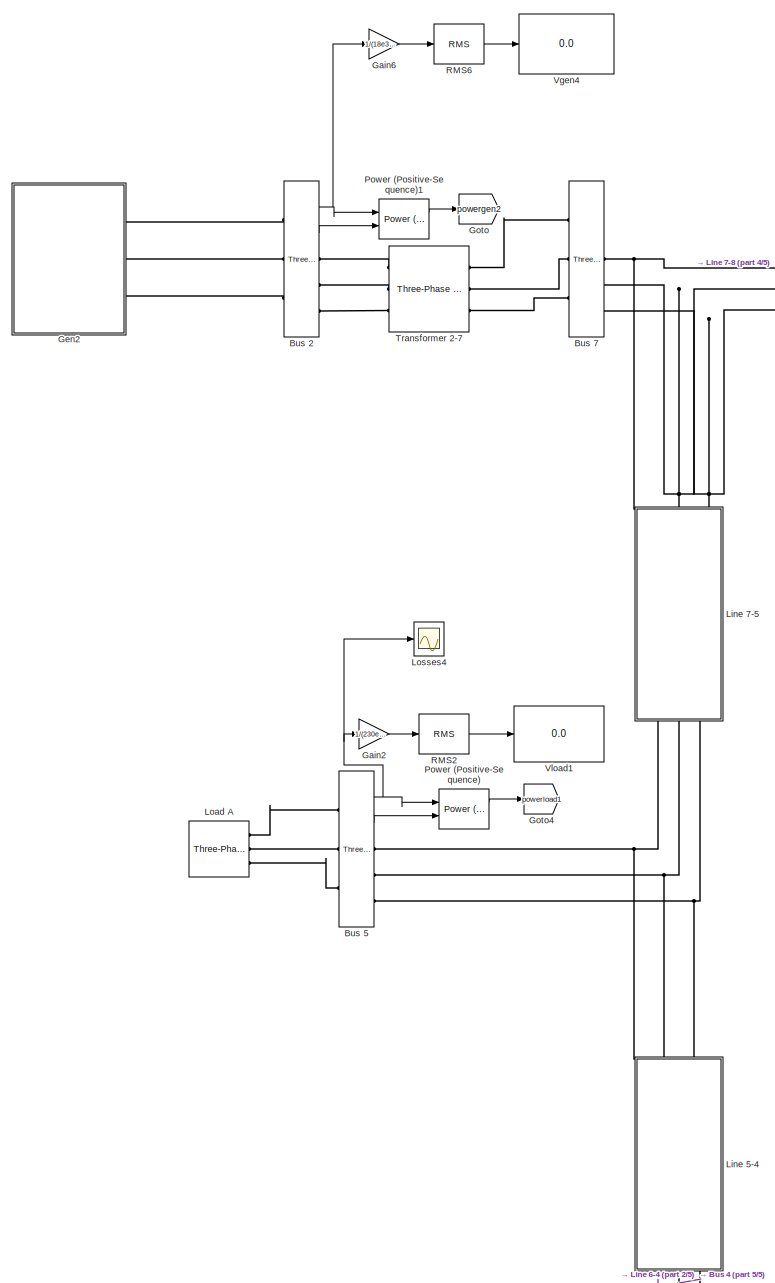
[diagram: root canvas - part 1/5, top center region]
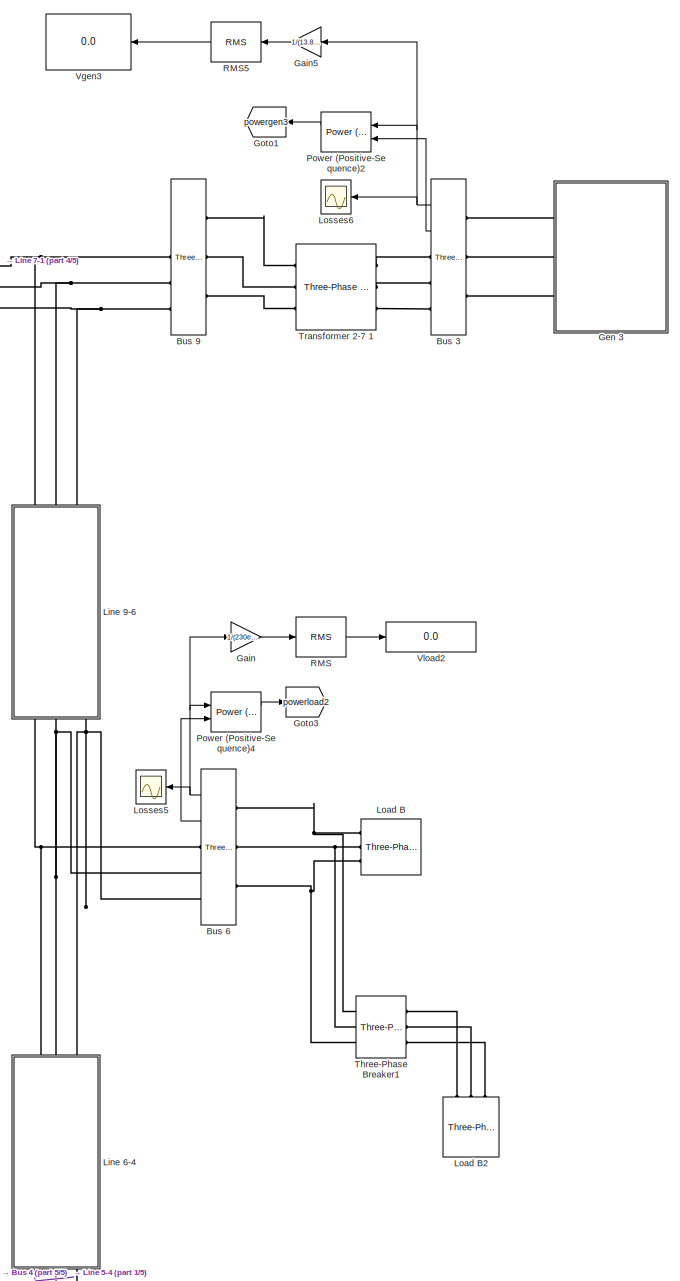
[diagram: root canvas - part 2/5, top right region]
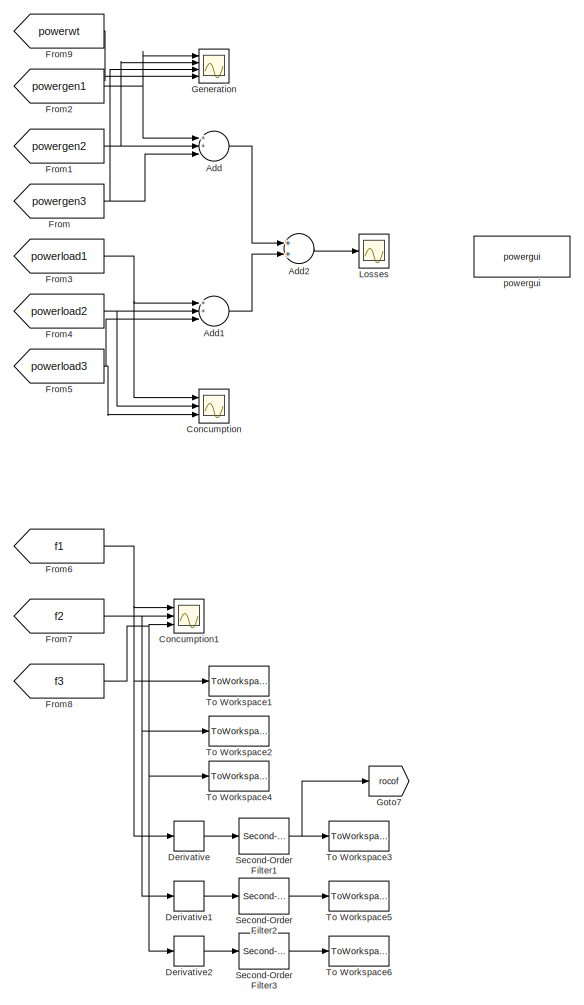
[diagram: root canvas - part 3/5, top left region]
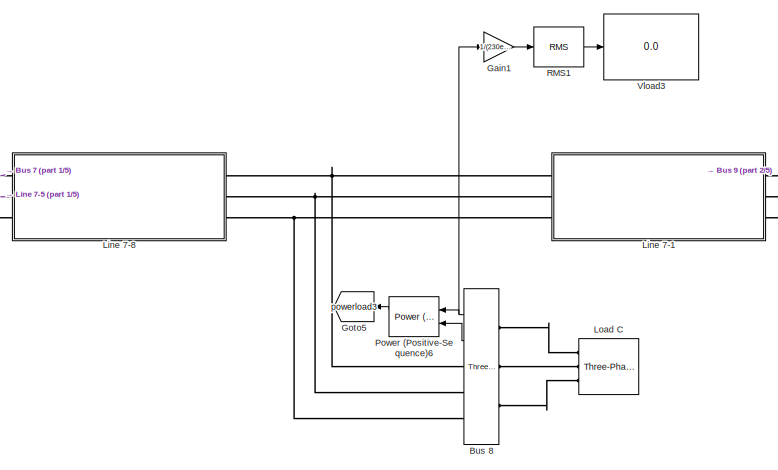
[diagram: root canvas - part 4/5, top center region]
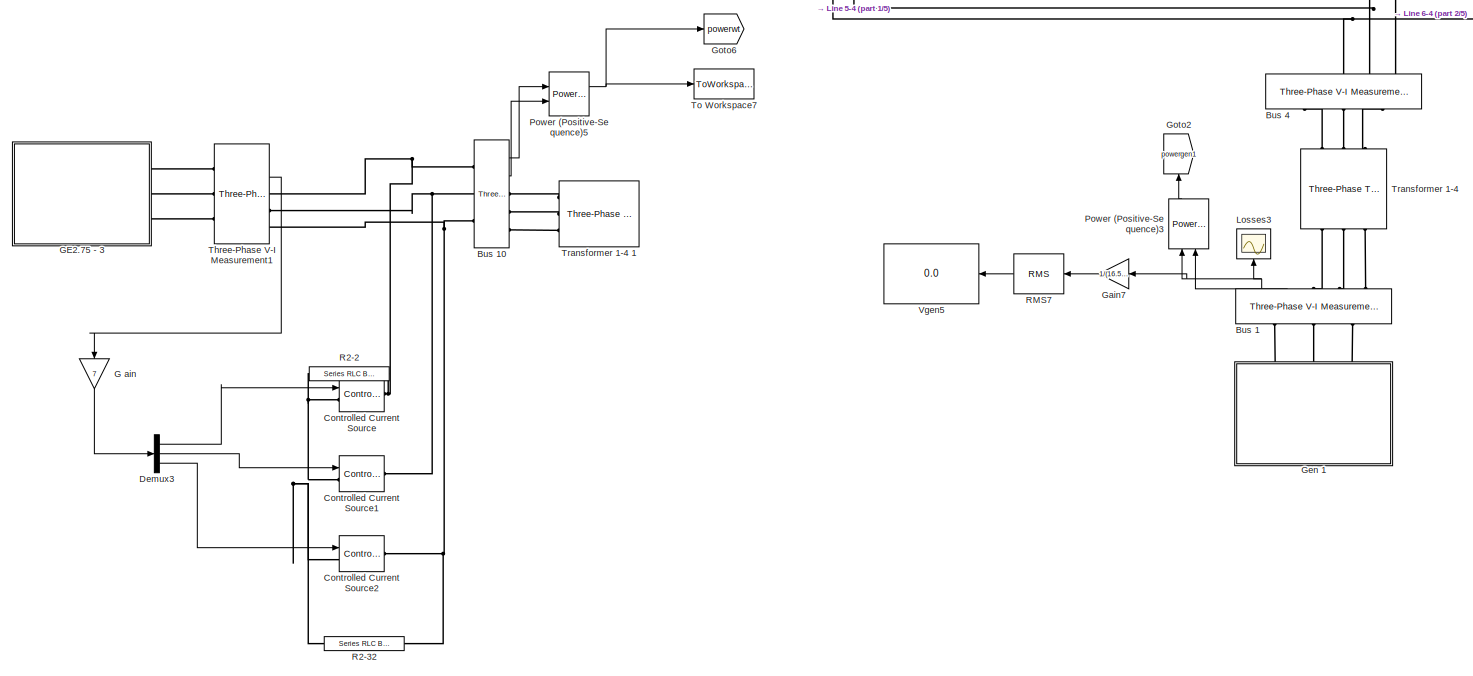
[diagram: root canvas - part 5/5, bottom center region]
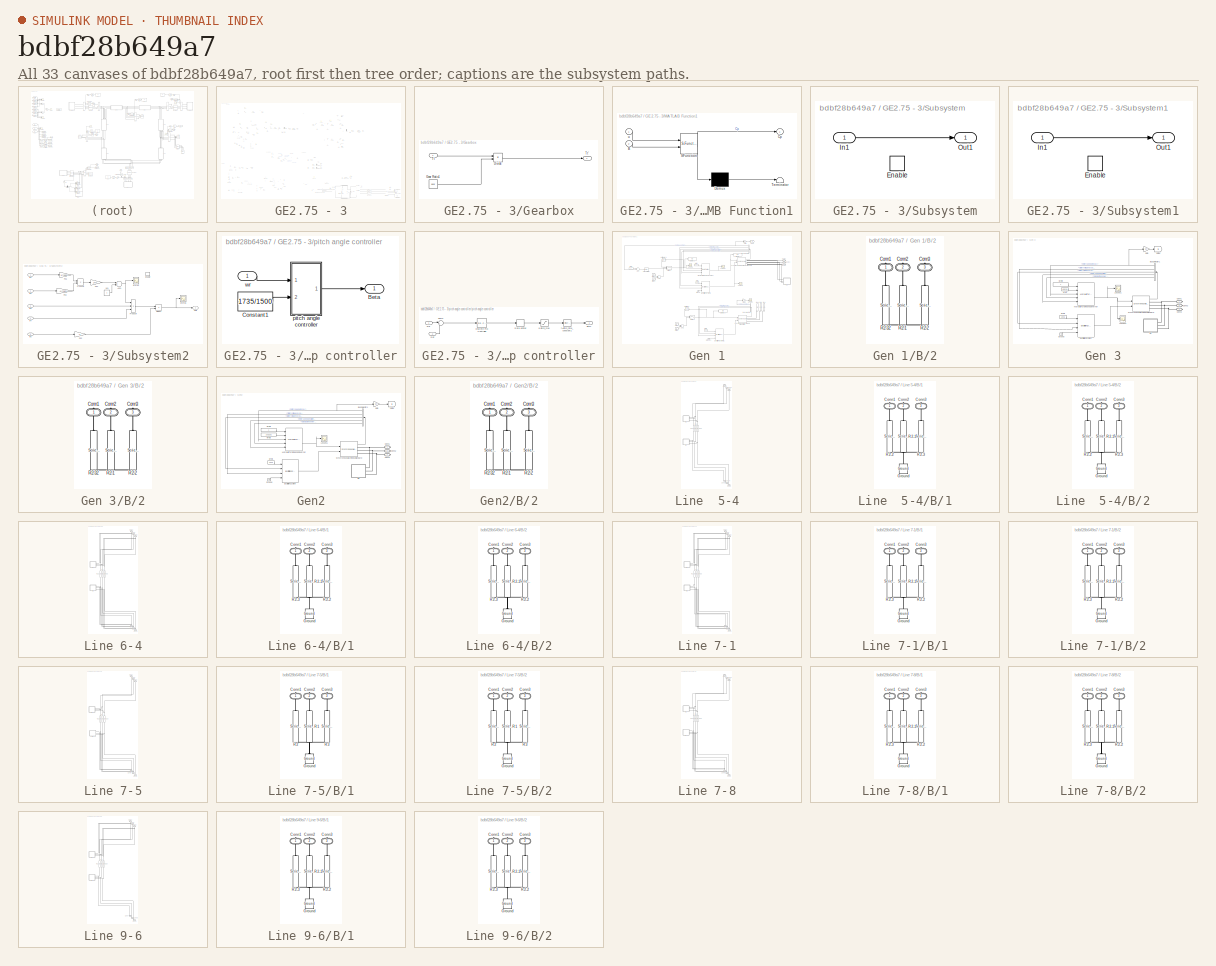
[diagram: thumbnail index - all 33 canvases of the model, root first then tree order]
MODEL slx_bdbf28b649a7
KIND model
CONFIG AbsTol = auto
CONFIG FixedStep = Ts
CONFIG MaxStep = auto
CONFIG MinStep = auto
CONFIG RelTol = 1e-3
CONFIG SampleTimeConstraint = Unconstrained
CONFIG Solver = FixedStepAuto
CONFIG SolverMode = Auto
CONFIG SolverName = FixedStepAuto
CONFIG StartTime = 0.0
CONFIG StopTime = 40
BLOCK [Sum] Add
  InputSameDT = off
  Inputs = 3
  OutDataTypeStr = Inherit: Inherit via internal rule
  Ports = [3, 1]
  SaturateOnIntegerOverflow = off
BLOCK [Sum] Add1
  InputSameDT = off
  Inputs = 3
  OutDataTypeStr = Inherit: Inherit via internal rule
  Ports = [3, 1]
  SaturateOnIntegerOverflow = off
BLOCK [Sum] Add2
  InputSameDT = off
  OutDataTypeStr = Inherit: Inherit via internal rule
  Ports = [2, 1]
  SaturateOnIntegerOverflow = off
BLOCK [Reference] Bus 1  REF=powerlib/Measurements/Three-Phase
V-I Measurement
  Ports = [0, 2, 0, 0, 0, 3, 3]
  SourceBlock = powerlib/Measurements/Three-Phase\nV-I Measurement
  SourceType = Three-Phase VI Measurement
BLOCK [Reference] Bus 10  REF=powerlib/Measurements/Three-Phase
V-I Measurement
  Commented = on
  Ports = [0, 2, 0, 0, 0, 3, 3]
  SourceBlock = powerlib/Measurements/Three-Phase\nV-I Measurement
  SourceType = Three-Phase VI Measurement
BLOCK [Reference] Bus 2  REF=powerlib/Measurements/Three-Phase
V-I Measurement
  Ports = [0, 2, 0, 0, 0, 3, 3]
  SourceBlock = powerlib/Measurements/Three-Phase\nV-I Measurement
  SourceType = Three-Phase VI Measurement
BLOCK [Reference] Bus 3  REF=powerlib/Measurements/Three-Phase
V-I Measurement
  Ports = [0, 2, 0, 0, 0, 3, 3]
  SourceBlock = powerlib/Measurements/Three-Phase\nV-I Measurement
  SourceType = Three-Phase VI Measurement
BLOCK [Reference] Bus 4  REF=powerlib/Measurements/Three-Phase
V-I Measurement
  Ports = [0, 2, 0, 0, 0, 3, 3]
  SourceBlock = powerlib/Measurements/Three-Phase\nV-I Measurement
  SourceType = Three-Phase VI Measurement
BLOCK [Reference] Bus 5  REF=powerlib/Measurements/Three-Phase
V-I Measurement
  Ports = [0, 2, 0, 0, 0, 3, 3]
  SourceBlock = powerlib/Measurements/Three-Phase\nV-I Measurement
  SourceType = Three-Phase VI Measurement
BLOCK [Reference] Bus 6  REF=powerlib/Measurements/Three-Phase
V-I Measurement
  Ports = [0, 2, 0, 0, 0, 3, 3]
  SourceBlock = powerlib/Measurements/Three-Phase\nV-I Measurement
  SourceType = Three-Phase VI Measurement
BLOCK [Reference] Bus 7  REF=powerlib/Measurements/Three-Phase
V-I Measurement
  Ports = [0, 2, 0, 0, 0, 3, 3]
  SourceBlock = powerlib/Measurements/Three-Phase\nV-I Measurement
  SourceType = Three-Phase VI Measurement
BLOCK [Reference] Bus 8  REF=powerlib/Measurements/Three-Phase
V-I Measurement
  Ports = [0, 2, 0, 0, 0, 3, 3]
  SourceBlock = powerlib/Measurements/Three-Phase\nV-I Measurement
  SourceType = Three-Phase VI Measurement
BLOCK [Reference] Bus 9  REF=powerlib/Measurements/Three-Phase
V-I Measurement
  Ports = [0, 2, 0, 0, 0, 3, 3]
  SourceBlock = powerlib/Measurements/Three-Phase\nV-I Measurement
  SourceType = Three-Phase VI Measurement
BLOCK [Scope] Concumption
  NumInputPorts = 3
  Ports = [3]
  ScopeSpecificationString = Simulink.scopes.TimeScopeBlockCfg('CurrentConfiguration', extmgr.ConfigurationSet(extmgr.Configuration('Core','General UI',true),extmgr.Configuration('Core','Source UI',true),extmgr.Configuration('Sources','WiredSimulink',true,'DataLoggingVariableName','ScopeData2'),extmgr.Configuration('Visuals','Time Domain',true,'SerializedDisplays',{struct('MinYLimReal','-178310956.05634','MaxYLimReal','198123...<+1578ch>
BLOCK [Scope] Concumption1
  NumInputPorts = 3
  Ports = [3]
  ScopeSpecificationString = Simulink.scopes.TimeScopeBlockCfg('CurrentConfiguration', extmgr.ConfigurationSet(extmgr.Configuration('Core','General UI',true),extmgr.Configuration('Core','Source UI',true),extmgr.Configuration('Sources','WiredSimulink',true,'DataLoggingVariableName','ScopeData5'),extmgr.Configuration('Visuals','Time Domain',true,'SerializedDisplays',{struct('MinYLimReal','49.70538','MaxYLimReal','50.44773','YLa...<+1454ch>
BLOCK [Reference] Controlled Current Source  REF=powerlib/Electrical
Sources/Controlled Current Source
  Commented = on
  Ports = [1, 0, 0, 0, 0, 1, 1]
  SourceBlock = powerlib/Electrical\nSources/Controlled Current Source
  SourceType = Controlled Current Source
BLOCK [Reference] Controlled Current Source1  REF=powerlib/Electrical
Sources/Controlled Current Source
  Commented = on
  Ports = [1, 0, 0, 0, 0, 1, 1]
  SourceBlock = powerlib/Electrical\nSources/Controlled Current Source
  SourceType = Controlled Current Source
BLOCK [Reference] Controlled Current Source2  REF=powerlib/Electrical
Sources/Controlled Current Source
  Commented = on
  Ports = [1, 0, 0, 0, 0, 1, 1]
  SourceBlock = powerlib/Electrical\nSources/Controlled Current Source
  SourceType = Controlled Current Source
BLOCK [Demux] Demux3
  Commented = on
  DisplayOption = bar
  Outputs = 3
  Ports = [1, 3]
BLOCK [Derivative] Derivative
BLOCK [Derivative] Derivative1
BLOCK [Derivative] Derivative2
BLOCK [From] From
  GotoTag = powergen3
BLOCK [From] From1
  GotoTag = powergen2
BLOCK [From] From2
  GotoTag = powergen1
BLOCK [From] From3
  GotoTag = powerload1
BLOCK [From] From4
  GotoTag = powerload2
BLOCK [From] From5
  GotoTag = powerload3
BLOCK [From] From6
  GotoTag = f1
  TagVisibility = global
BLOCK [From] From7
  GotoTag = f2
  TagVisibility = global
BLOCK [From] From8
  GotoTag = f3
  TagVisibility = global
BLOCK [From] From9
  Commented = on
  GotoTag = powerwt
BLOCK [Gain] G ain
  Commented = on
  Gain = 7
  OutDataTypeStr = Inherit: Inherit via internal rule
  ParamDataTypeStr = Inherit: Inherit via internal rule
  SaturateOnIntegerOverflow = off
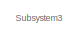
[diagram: GE2.75 - 3 - part 1/10, top left region]
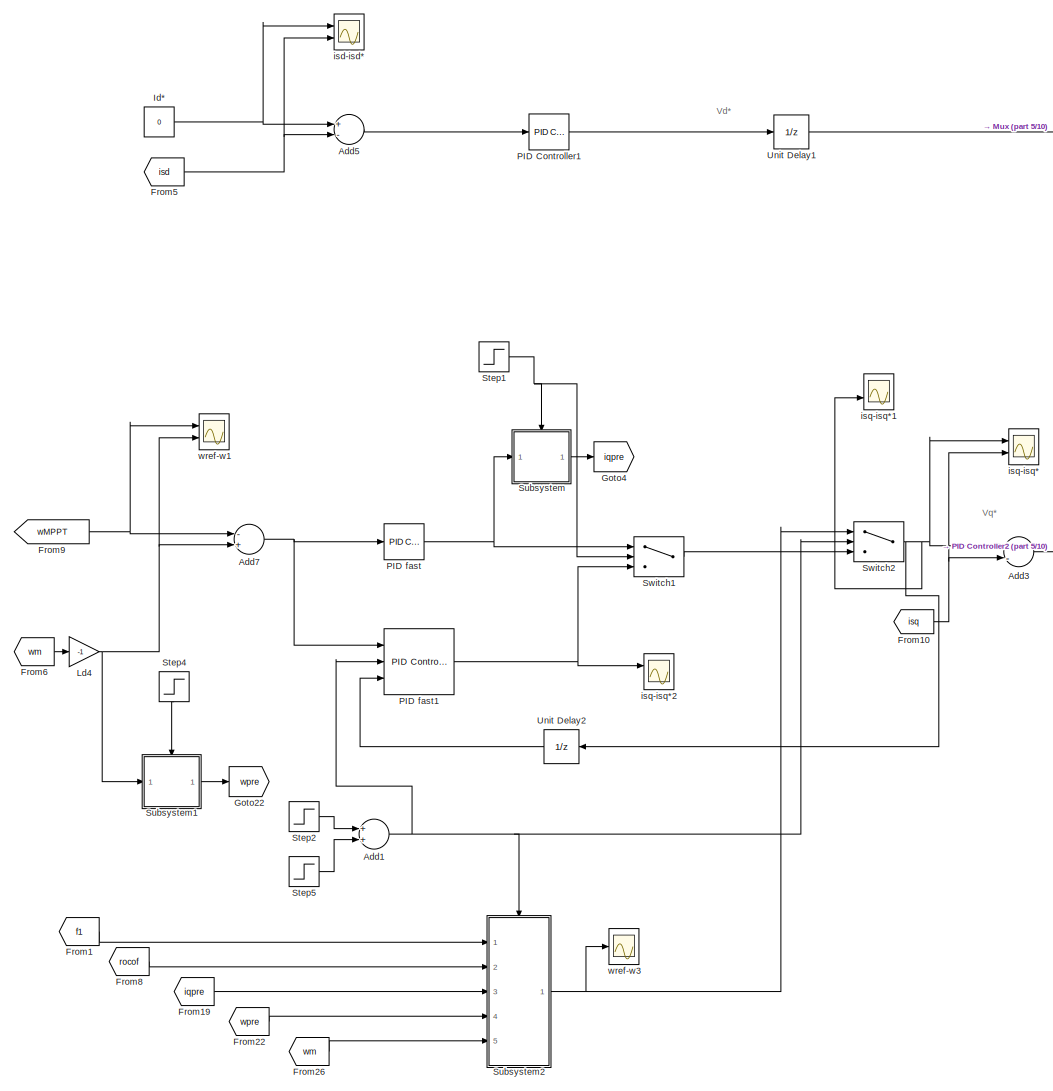
[diagram: GE2.75 - 3 - part 2/10, top left region]
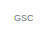
[diagram: GE2.75 - 3 - part 3/10, top center region]
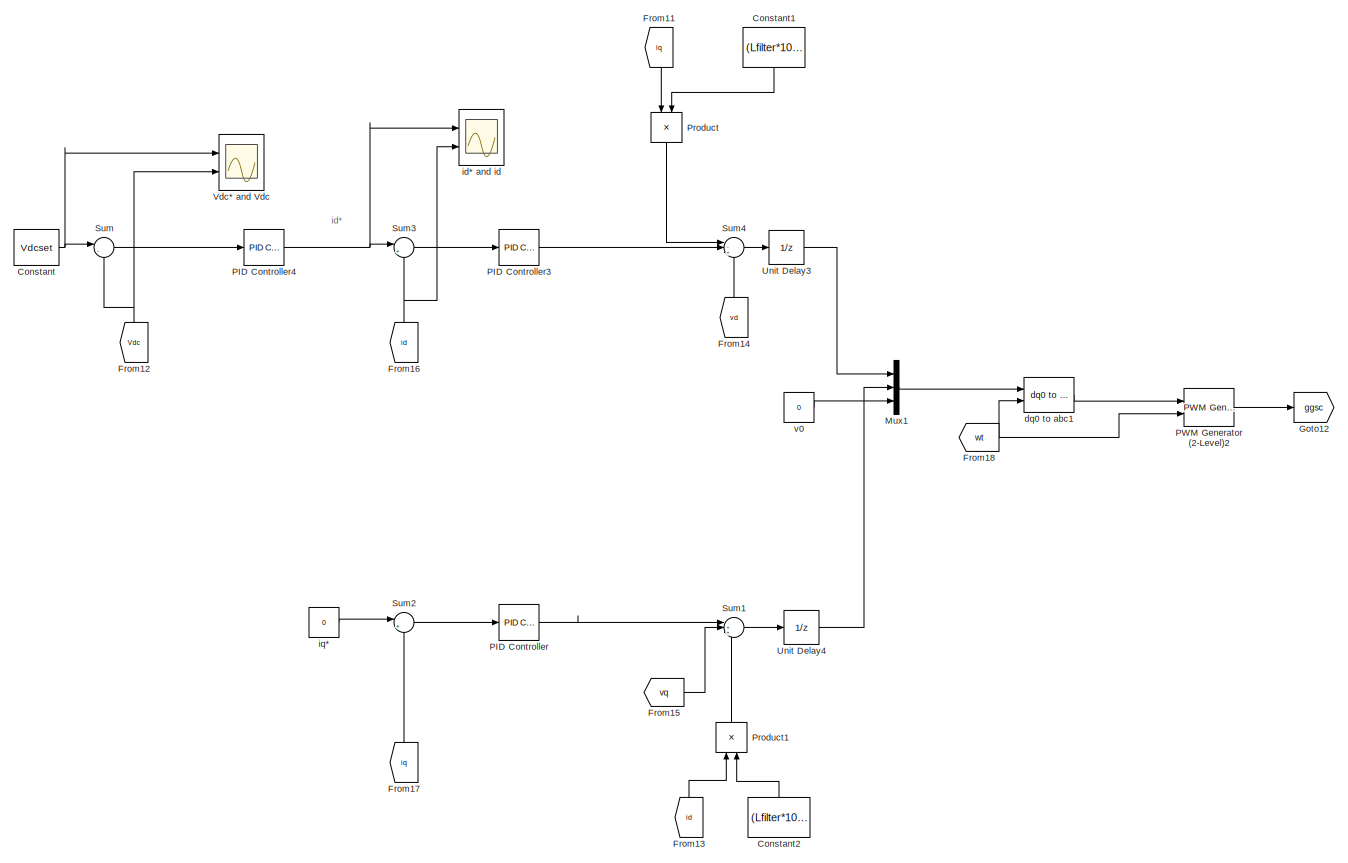
[diagram: GE2.75 - 3 - part 4/10, top center region]
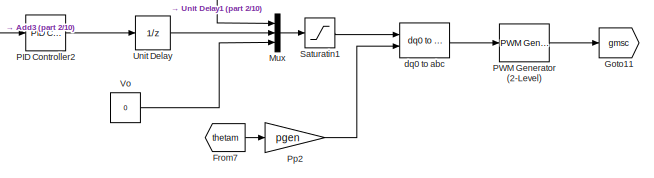
[diagram: GE2.75 - 3 - part 5/10, top center region]
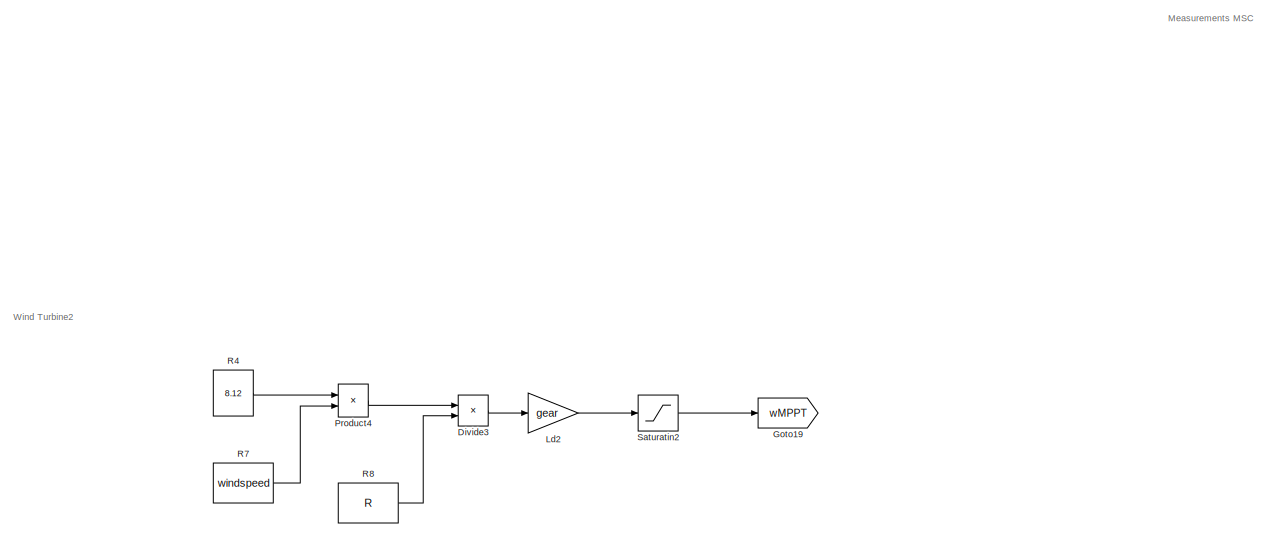
[diagram: GE2.75 - 3 - part 6/10, middle left region]
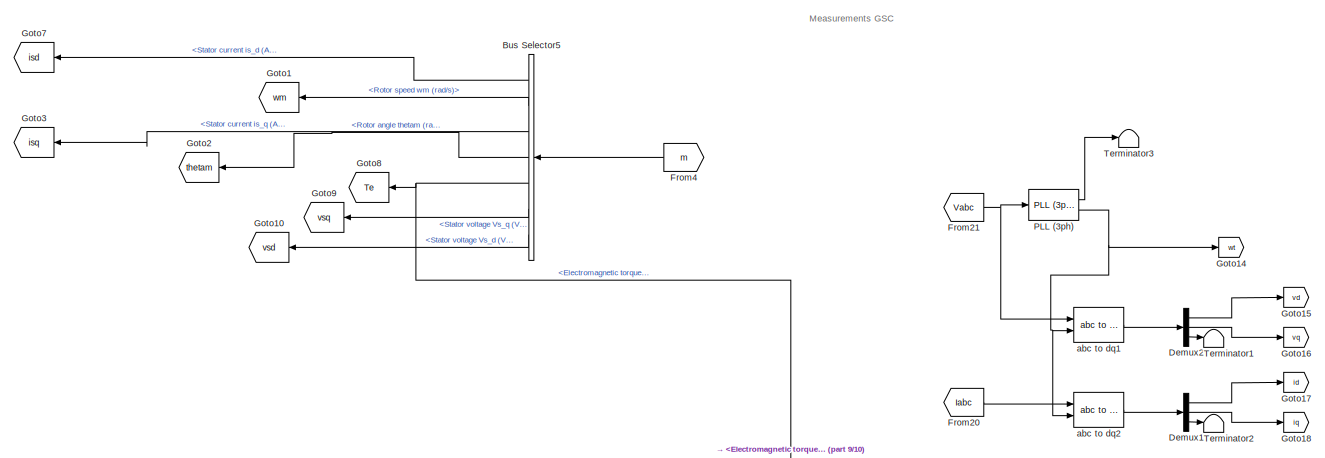
[diagram: GE2.75 - 3 - part 7/10, central region]
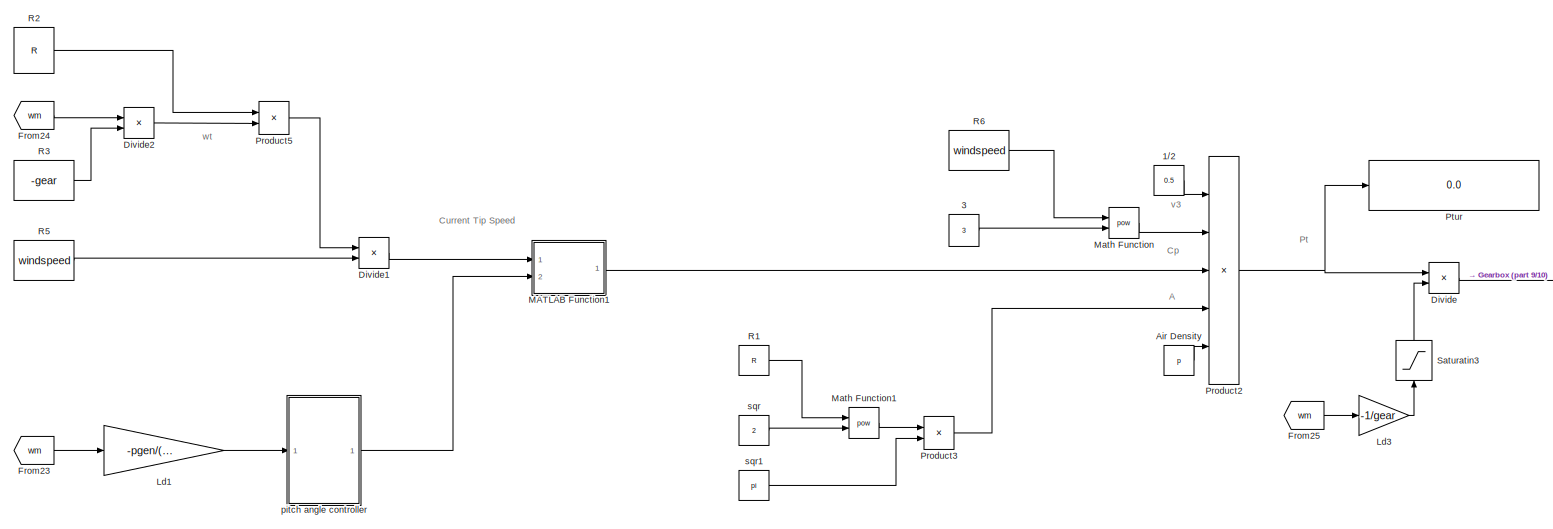
[diagram: GE2.75 - 3 - part 8/10, bottom left region]
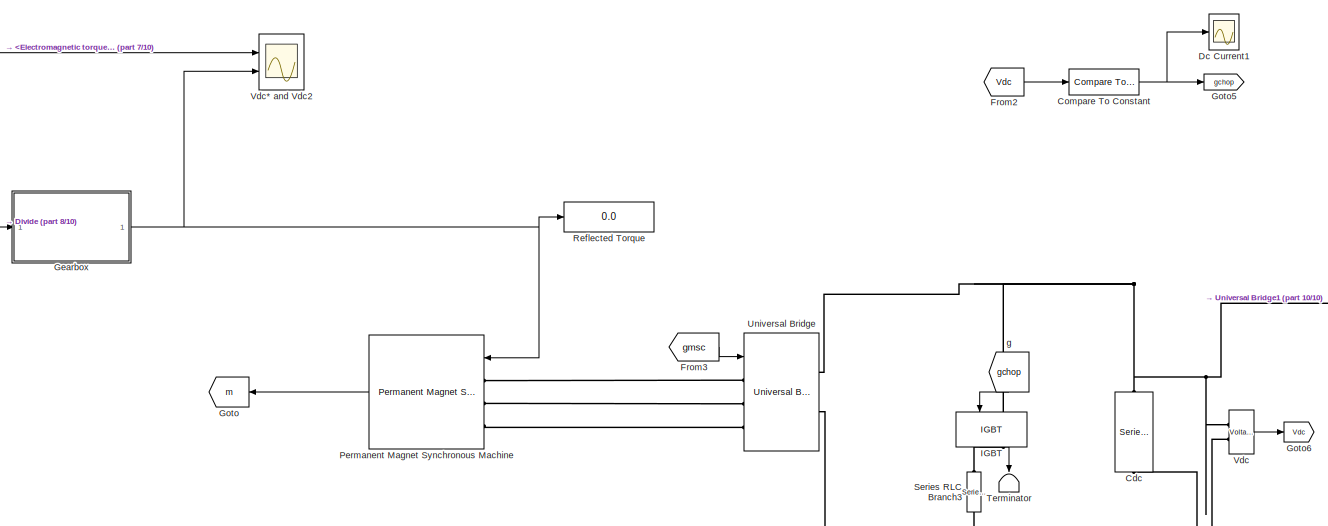
[diagram: GE2.75 - 3 - part 9/10, bottom center region]
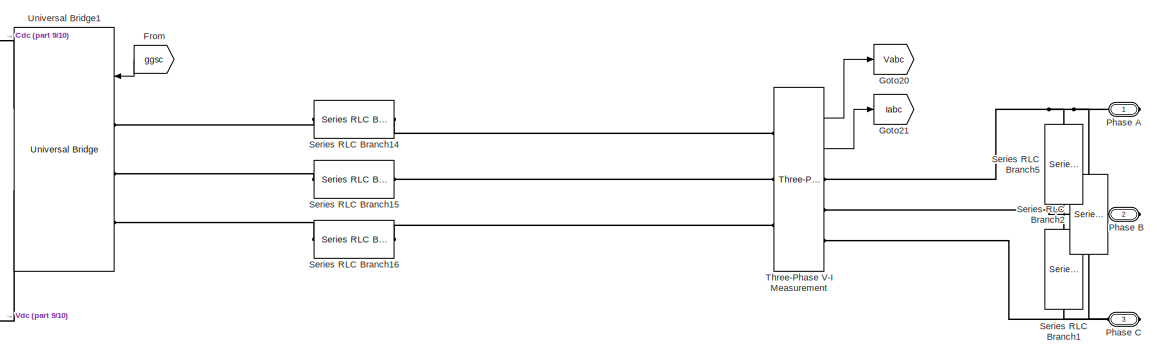
[diagram: GE2.75 - 3 - part 10/10, bottom right region]
BLOCK [SubSystem] GE2.75 - 3
  Commented = on
  Ports = [0, 0, 0, 0, 0, 0, 3]
  RequestExecContextInheritance = off
  Variant = off
BLOCK [Constant] GE2.75 - 3/1//2
  Value = 0.5
BLOCK [Constant] GE2.75 - 3/3
  Value = 3
BLOCK [Sum] GE2.75 - 3/Add1
  InputSameDT = off
  OutDataTypeStr = Inherit: Inherit via internal rule
  Ports = [2, 1]
  SaturateOnIntegerOverflow = off
BLOCK [Sum] GE2.75 - 3/Add3
  InputSameDT = off
  Inputs = +-
  OutDataTypeStr = Inherit: Inherit via internal rule
  Ports = [2, 1]
  SaturateOnIntegerOverflow = off
BLOCK [Sum] GE2.75 - 3/Add5
  InputSameDT = off
  Inputs = +-
  OutDataTypeStr = Inherit: Inherit via internal rule
  Ports = [2, 1]
  SaturateOnIntegerOverflow = off
BLOCK [Sum] GE2.75 - 3/Add7
  InputSameDT = off
  Inputs = -+
  OutDataTypeStr = Inherit: Inherit via internal rule
  Ports = [2, 1]
  SaturateOnIntegerOverflow = off
BLOCK [Constant] GE2.75 - 3/Air Density
  Value = p
BLOCK [BusSelector] GE2.75 - 3/Bus Selector5
  OutputSignals = Stator current is_d (A),Rotor speed wm (rad/s),Stator current is_q (A),Rotor angle thetam (rad),Electromagnetic torque Te (N*m),Stator voltage Vs_q (V),Stator voltage Vs_d (V)
  Ports = [1, 7]
BLOCK [Reference] GE2.75 - 3/Cdc  REF=powerlib/Elements/Series RLC Branch
  Ports = [0, 0, 0, 0, 0, 1, 1]
  SourceBlock = powerlib/Elements/Series RLC Branch
  SourceType = Series RLC Branch
BLOCK [Reference] GE2.75 - 3/Compare To Constant  REF=simulink/Logic and Bit
Operations/Compare
To Constant
  Ports = [1, 1]
  SourceBlock = simulink/Logic and Bit\nOperations/Compare\nTo Constant
  SourceType = Compare To Constant
BLOCK [Constant] GE2.75 - 3/Constant
  Value = Vdcset
BLOCK [Constant] GE2.75 - 3/Constant1
  Value = (Lfilter*100*pi*2300)/690
BLOCK [Constant] GE2.75 - 3/Constant2
  Value = (Lfilter*100*pi*2300)/690
BLOCK [Scope] GE2.75 - 3/Dc Current1
  Ports = [1]
  ScopeSpecificationString = Simulink.scopes.TimeScopeBlockCfg('CurrentConfiguration', extmgr.ConfigurationSet(extmgr.Configuration('Core','General UI',true),extmgr.Configuration('Core','Source UI',true),extmgr.Configuration('Sources','WiredSimulink',true,'DataLoggingVariableName','ScopeData1'),extmgr.Configuration('Visuals','Time Domain',true,'SerializedDisplays',{struct('MinYLimReal','-1.00000','MaxYLimReal','1.00000','YLab...<+1422ch>
BLOCK [Demux] GE2.75 - 3/Demux1
  DisplayOption = bar
  Outputs = 3
  Ports = [1, 3]
BLOCK [Demux] GE2.75 - 3/Demux2
  DisplayOption = bar
  Outputs = 3
  Ports = [1, 3]
BLOCK [Product] GE2.75 - 3/Divide
  InputSameDT = off
  Inputs = */
  OutDataTypeStr = Inherit: Inherit via internal rule
  Ports = [2, 1]
  RndMeth = Floor
  SaturateOnIntegerOverflow = off
BLOCK [Product] GE2.75 - 3/Divide1
  InputSameDT = off
  Inputs = */
  OutDataTypeStr = Inherit: Inherit via internal rule
  Ports = [2, 1]
  RndMeth = Floor
  SaturateOnIntegerOverflow = off
BLOCK [Product] GE2.75 - 3/Divide2
  InputSameDT = off
  Inputs = */
  OutDataTypeStr = Inherit: Inherit via internal rule
  Ports = [2, 1]
  RndMeth = Floor
  SaturateOnIntegerOverflow = off
BLOCK [Product] GE2.75 - 3/Divide3
  InputSameDT = off
  Inputs = */
  OutDataTypeStr = Inherit: Inherit via internal rule
  Ports = [2, 1]
  RndMeth = Floor
  SaturateOnIntegerOverflow = off
BLOCK [From] GE2.75 - 3/From
  GotoTag = ggsc
BLOCK [From] GE2.75 - 3/From1
  GotoTag = f1
  TagVisibility = global
BLOCK [From] GE2.75 - 3/From10
  GotoTag = isq
BLOCK [From] GE2.75 - 3/From11
  GotoTag = iq
BLOCK [From] GE2.75 - 3/From12
  GotoTag = Vdc
BLOCK [From] GE2.75 - 3/From13
  GotoTag = id
BLOCK [From] GE2.75 - 3/From14
  GotoTag = vd
BLOCK [From] GE2.75 - 3/From15
  GotoTag = vq
BLOCK [From] GE2.75 - 3/From16
  GotoTag = id
BLOCK [From] GE2.75 - 3/From17
  GotoTag = iq
BLOCK [From] GE2.75 - 3/From18
  GotoTag = wt
BLOCK [From] GE2.75 - 3/From19
  GotoTag = iqpre
BLOCK [From] GE2.75 - 3/From2
  GotoTag = Vdc
BLOCK [From] GE2.75 - 3/From20
  GotoTag = Iabc
BLOCK [From] GE2.75 - 3/From21
  GotoTag = Vabc
BLOCK [From] GE2.75 - 3/From22
  GotoTag = wpre
BLOCK [From] GE2.75 - 3/From23
  GotoTag = wm
BLOCK [From] GE2.75 - 3/From24
  GotoTag = wm
BLOCK [From] GE2.75 - 3/From25
  GotoTag = wm
BLOCK [From] GE2.75 - 3/From26
  GotoTag = wm
BLOCK [From] GE2.75 - 3/From3
  GotoTag = gmsc
BLOCK [From] GE2.75 - 3/From4
  GotoTag = m
BLOCK [From] GE2.75 - 3/From5
  GotoTag = isd
BLOCK [From] GE2.75 - 3/From6
  GotoTag = wm
BLOCK [From] GE2.75 - 3/From7
  GotoTag = thetam
BLOCK [From] GE2.75 - 3/From8
  GotoTag = rocof
  TagVisibility = global
BLOCK [From] GE2.75 - 3/From9
  GotoTag = wMPPT
BLOCK [SubSystem] GE2.75 - 3/Gearbox
  Ports = [1, 1]
  RequestExecContextInheritance = off
  Variant = off
BLOCK [Product] GE2.75 - 3/Gearbox/Divide
  InputSameDT = off
  Inputs = */
  OutDataTypeStr = Inherit: Inherit via internal rule
  Ports = [2, 1]
  RndMeth = Floor
  SaturateOnIntegerOverflow = off
BLOCK [Constant] GE2.75 - 3/Gearbox/Gear Ratio1
  Value = gear
BLOCK [Inport] GE2.75 - 3/Gearbox/Tt
  IconDisplay = Port number
BLOCK [Outport] GE2.75 - 3/Gearbox/Tt'
  IconDisplay = Port number
BLOCK [Goto] GE2.75 - 3/Goto
  GotoTag = m
BLOCK [Goto] GE2.75 - 3/Goto1
  GotoTag = wm
BLOCK [Goto] GE2.75 - 3/Goto10
  GotoTag = vsd
BLOCK [Goto] GE2.75 - 3/Goto11
  GotoTag = gmsc
BLOCK [Goto] GE2.75 - 3/Goto12
  GotoTag = ggsc
BLOCK [Goto] GE2.75 - 3/Goto14
  GotoTag = wt
BLOCK [Goto] GE2.75 - 3/Goto15
  GotoTag = vd
BLOCK [Goto] GE2.75 - 3/Goto16
  GotoTag = vq
BLOCK [Goto] GE2.75 - 3/Goto17
  GotoTag = id
BLOCK [Goto] GE2.75 - 3/Goto18
  GotoTag = iq
BLOCK [Goto] GE2.75 - 3/Goto19
  GotoTag = wMPPT
BLOCK [Goto] GE2.75 - 3/Goto2
  GotoTag = thetam
BLOCK [Goto] GE2.75 - 3/Goto20
  GotoTag = Vabc
BLOCK [Goto] GE2.75 - 3/Goto21
  GotoTag = Iabc
BLOCK [Goto] GE2.75 - 3/Goto22
  GotoTag = wpre
BLOCK [Goto] GE2.75 - 3/Goto3
  GotoTag = isq
BLOCK [Goto] GE2.75 - 3/Goto4
  GotoTag = iqpre
BLOCK [Goto] GE2.75 - 3/Goto5
  GotoTag = gchop
BLOCK [Goto] GE2.75 - 3/Goto6
  GotoTag = Vdc
BLOCK [Goto] GE2.75 - 3/Goto7
  GotoTag = isd
BLOCK [Goto] GE2.75 - 3/Goto8
  GotoTag = Te
BLOCK [Goto] GE2.75 - 3/Goto9
  GotoTag = vsq
BLOCK [Reference] GE2.75 - 3/IGBT  REF=powerlib/Power
Electronics/IGBT
  Ports = [1, 1, 0, 0, 0, 1, 1]
  SourceBlock = powerlib/Power\nElectronics/IGBT
  SourceType = IGBT
BLOCK [Constant] GE2.75 - 3/Id*
  Value = 0
BLOCK [Gain] GE2.75 - 3/Ld1
  Gain = -pgen/(2*fnom*pi)
  OutDataTypeStr = Inherit: Inherit via internal rule
  ParamDataTypeStr = Inherit: Inherit via internal rule
  SaturateOnIntegerOverflow = off
BLOCK [Gain] GE2.75 - 3/Ld2
  Gain = gear
  OutDataTypeStr = Inherit: Inherit via internal rule
  ParamDataTypeStr = Inherit: Inherit via internal rule
  SaturateOnIntegerOverflow = off
BLOCK [Gain] GE2.75 - 3/Ld3
  Gain = -1/gear
  OutDataTypeStr = Inherit: Inherit via internal rule
  ParamDataTypeStr = Inherit: Inherit via internal rule
  SaturateOnIntegerOverflow = off
BLOCK [Gain] GE2.75 - 3/Ld4
  Gain = -1
  OutDataTypeStr = Inherit: Inherit via internal rule
  ParamDataTypeStr = Inherit: Inherit via internal rule
  SaturateOnIntegerOverflow = off
BLOCK [SubSystem] GE2.75 - 3/MATLAB Function1
  ErrorFcn = Stateflow.Translate.translate
  PermitHierarchicalResolution = ExplicitOnly
  Ports = [2, 1]
  RequestExecContextInheritance = off
  SFBlockType = MATLAB Function
  TreatAsAtomicUnit = on
  Variant = off
BLOCK [Demux] GE2.75 - 3/MATLAB Function1/ Demux 
  Outputs = 1
  Ports = [1, 1]
BLOCK [S-Function] GE2.75 - 3/MATLAB Function1/ SFunction 
  EnableBusSupport = on
  FunctionName = sf_sfun
  PortCounts = [2 2]
  Ports = [2, 2]
  SFunctionDeploymentMode = off
  Tag = Stateflow S-Function ieee9bus_wind_farm 3
BLOCK [Terminator] GE2.75 - 3/MATLAB Function1/ Terminator 
BLOCK [Inport] GE2.75 - 3/MATLAB Function1/B
  IconDisplay = Port number
  Port = 2
BLOCK [Outport] GE2.75 - 3/MATLAB Function1/Cp
  IconDisplay = Port number
BLOCK [Inport] GE2.75 - 3/MATLAB Function1/u
  IconDisplay = Port number
BLOCK [Math] GE2.75 - 3/Math Function
  Operator = pow
  Ports = [2, 1]
BLOCK [Math] GE2.75 - 3/Math Function1
  Operator = pow
  Ports = [2, 1]
BLOCK [Mux] GE2.75 - 3/Mux
  DisplayOption = bar
  Inputs = 3
  Ports = [3, 1]
BLOCK [Mux] GE2.75 - 3/Mux1
  DisplayOption = bar
  Inputs = 3
  Ports = [3, 1]
BLOCK [Reference] GE2.75 - 3/PID Controller  REF=simulink/Continuous/PID Controller
  Ports = [1, 1]
  SourceBlock = simulink/Continuous/PID Controller
  SourceType = PID 1dof
BLOCK [Reference] GE2.75 - 3/PID Controller1  REF=simulink/Continuous/PID Controller
  Ports = [1, 1]
  SourceBlock = simulink/Continuous/PID Controller
  SourceType = PID 1dof
BLOCK [Reference] GE2.75 - 3/PID Controller2  REF=simulink/Continuous/PID Controller
  Ports = [1, 1]
  SourceBlock = simulink/Continuous/PID Controller
  SourceType = PID 1dof
BLOCK [Reference] GE2.75 - 3/PID Controller3  REF=simulink/Continuous/PID Controller
  Ports = [1, 1]
  SourceBlock = simulink/Continuous/PID Controller
  SourceType = PID 1dof
BLOCK [Reference] GE2.75 - 3/PID Controller4  REF=simulink/Continuous/PID Controller
  Ports = [1, 1]
  SourceBlock = simulink/Continuous/PID Controller
  SourceType = PID 1dof
BLOCK [Reference] GE2.75 - 3/PID fast  REF=simulink/Continuous/PID Controller
  Ports = [1, 1]
  SourceBlock = simulink/Continuous/PID Controller
  SourceType = PID 1dof
BLOCK [Reference] GE2.75 - 3/PID fast1  REF=simulink/Continuous/PID Controller
  Ports = [3, 1]
  SourceBlock = simulink/Continuous/PID Controller
  SourceType = PID 1dof
BLOCK [Reference] GE2.75 - 3/PLL (3ph)  REF=powerlib_meascontrol/PLL/PLL
(3ph)
  Ports = [1, 2]
  SourceBlock = powerlib_meascontrol/PLL/PLL\n(3ph)
  SourceType = PLL (3ph)
BLOCK [Reference] GE2.75 - 3/PWM Generator (2-Level)  REF=powerlib_meascontrol/Pulse & Signal
Generators/PWM Generator
(2-Level)
  Ports = [1, 1]
  SourceBlock = powerlib_meascontrol/Pulse & Signal\nGenerators/PWM Generator\n(2-Level)
  SourceType = PWM Generator (2-Level)
BLOCK [Reference] GE2.75 - 3/PWM Generator (2-Level)2  REF=powerlib_meascontrol/Pulse & Signal
Generators/PWM Generator
(2-Level)
  Ports = [2, 1]
  SourceBlock = powerlib_meascontrol/Pulse & Signal\nGenerators/PWM Generator\n(2-Level)
  SourceType = PWM Generator (2-Level)
BLOCK [Reference] GE2.75 - 3/Permanent Magnet Synchronous Machine  REF=powerlib/Machines/Permanent Magnet
Synchronous Machine
  Ports = [1, 1, 0, 0, 0, 3]
  SourceBlock = powerlib/Machines/Permanent Magnet\nSynchronous Machine
  SourceType = Permanent Magnet Synchronous Machine
BLOCK [PMIOPort] GE2.75 - 3/Phase A
  Port = 1
  Side = Right
BLOCK [PMIOPort] GE2.75 - 3/Phase B
  Port = 2
  Side = Right
BLOCK [PMIOPort] GE2.75 - 3/Phase C
  Port = 3
  Side = Right
BLOCK [Gain] GE2.75 - 3/Pp2
  Gain = pgen
  OutDataTypeStr = Inherit: Inherit via internal rule
  ParamDataTypeStr = Inherit: Inherit via internal rule
  SaturateOnIntegerOverflow = off
BLOCK [Product] GE2.75 - 3/Product
  InputSameDT = off
  OutDataTypeStr = Inherit: Inherit via internal rule
  Ports = [2, 1]
  RndMeth = Floor
  SaturateOnIntegerOverflow = off
BLOCK [Product] GE2.75 - 3/Product1
  InputSameDT = off
  OutDataTypeStr = Inherit: Inherit via internal rule
  Ports = [2, 1]
  RndMeth = Floor
  SaturateOnIntegerOverflow = off
BLOCK [Product] GE2.75 - 3/Product2
  InputSameDT = off
  Inputs = 5
  OutDataTypeStr = Inherit: Inherit via internal rule
  Ports = [5, 1]
  RndMeth = Floor
  SaturateOnIntegerOverflow = off
BLOCK [Product] GE2.75 - 3/Product3
  InputSameDT = off
  OutDataTypeStr = Inherit: Inherit via internal rule
  Ports = [2, 1]
  RndMeth = Floor
  SaturateOnIntegerOverflow = off
BLOCK [Product] GE2.75 - 3/Product4
  InputSameDT = off
  OutDataTypeStr = Inherit: Inherit via internal rule
  Ports = [2, 1]
  RndMeth = Floor
  SaturateOnIntegerOverflow = off
BLOCK [Product] GE2.75 - 3/Product5
  InputSameDT = off
  OutDataTypeStr = Inherit: Inherit via internal rule
  Ports = [2, 1]
  RndMeth = Floor
  SaturateOnIntegerOverflow = off
BLOCK [Display] GE2.75 - 3/Ptur
  Decimation = 1
  Ports = [1]
BLOCK [Constant] GE2.75 - 3/R1
  Value = R
BLOCK [Constant] GE2.75 - 3/R2
  Value = R
BLOCK [Constant] GE2.75 - 3/R3
  Value = -gear
BLOCK [Constant] GE2.75 - 3/R4
  Value = 8.12
BLOCK [Constant] GE2.75 - 3/R5
  Value = windspeed
BLOCK [Constant] GE2.75 - 3/R6
  Value = windspeed
BLOCK [Constant] GE2.75 - 3/R7
  Value = windspeed
BLOCK [Constant] GE2.75 - 3/R8
  Value = R
BLOCK [Display] GE2.75 - 3/Reflected Torque
  Decimation = 1
  Ports = [1]
BLOCK [Saturate] GE2.75 - 3/Saturatin1
  InputPortMap = u0
  LowerLimit = -2000
  Ports = [1, 1]
  UpperLimit = 2000
BLOCK [Saturate] GE2.75 - 3/Saturatin2
  InputPortMap = u0
  LowerLimit = 1e-8
  Ports = [1, 1]
  UpperLimit = wmax
BLOCK [Saturate] GE2.75 - 3/Saturatin3
  InputPortMap = u0
  LowerLimit = 1e-8
  Ports = [1, 1]
  UpperLimit = inf
BLOCK [Reference] GE2.75 - 3/Series RLC Branch1  REF=powerlib/Elements/Series RLC Branch
  Ports = [0, 0, 0, 0, 0, 1, 1]
  SourceBlock = powerlib/Elements/Series RLC Branch
  SourceType = Series RLC Branch
BLOCK [Reference] GE2.75 - 3/Series RLC Branch14  REF=powerlib/Elements/Series RLC Branch
  Ports = [0, 0, 0, 0, 0, 1, 1]
  SourceBlock = powerlib/Elements/Series RLC Branch
  SourceType = Series RLC Branch
BLOCK [Reference] GE2.75 - 3/Series RLC Branch15  REF=powerlib/Elements/Series RLC Branch
  Ports = [0, 0, 0, 0, 0, 1, 1]
  SourceBlock = powerlib/Elements/Series RLC Branch
  SourceType = Series RLC Branch
BLOCK [Reference] GE2.75 - 3/Series RLC Branch16  REF=powerlib/Elements/Series RLC Branch
  Ports = [0, 0, 0, 0, 0, 1, 1]
  SourceBlock = powerlib/Elements/Series RLC Branch
  SourceType = Series RLC Branch
BLOCK [Reference] GE2.75 - 3/Series RLC Branch2  REF=powerlib/Elements/Series RLC Branch
  Ports = [0, 0, 0, 0, 0, 1, 1]
  SourceBlock = powerlib/Elements/Series RLC Branch
  SourceType = Series RLC Branch
BLOCK [Reference] GE2.75 - 3/Series RLC Branch3  REF=powerlib/Elements/Series RLC Branch
  Ports = [0, 0, 0, 0, 0, 1, 1]
  SourceBlock = powerlib/Elements/Series RLC Branch
  SourceType = Series RLC Branch
BLOCK [Reference] GE2.75 - 3/Series RLC Branch5  REF=powerlib/Elements/Series RLC Branch
  Ports = [0, 0, 0, 0, 0, 1, 1]
  SourceBlock = powerlib/Elements/Series RLC Branch
  SourceType = Series RLC Branch
BLOCK [Step] GE2.75 - 3/Step1
  After = 0
  Before = 1
  SampleTime = Ts
  Time = insup
BLOCK [Step] GE2.75 - 3/Step2
  SampleTime = Ts
  Time = insup
BLOCK [Step] GE2.75 - 3/Step4
  After = 0
  Before = 1
  SampleTime = Ts
  Time = insup
BLOCK [Step] GE2.75 - 3/Step5
  After = -1
  SampleTime = Ts
  Time = insup+supduration
BLOCK [SubSystem] GE2.75 - 3/Subsystem
  Ports = [1, 1, 1]
  RequestExecContextInheritance = off
  Variant = off
BLOCK [EnablePort] GE2.75 - 3/Subsystem/Enable
  Ports = []
BLOCK [Inport] GE2.75 - 3/Subsystem/In1
  IconDisplay = Port number
BLOCK [Outport] GE2.75 - 3/Subsystem/Out1
  IconDisplay = Port number
BLOCK [SubSystem] GE2.75 - 3/Subsystem1
  Ports = [1, 1, 1]
  RequestExecContextInheritance = off
  Variant = off
BLOCK [EnablePort] GE2.75 - 3/Subsystem1/Enable
  Ports = []
BLOCK [Inport] GE2.75 - 3/Subsystem1/In1
  IconDisplay = Port number
BLOCK [Outport] GE2.75 - 3/Subsystem1/Out1
  IconDisplay = Port number
BLOCK [SubSystem] GE2.75 - 3/Subsystem2
  Ports = [5, 1, 1]
  RequestExecContextInheritance = off
  Variant = off
BLOCK [Sum] GE2.75 - 3/Subsystem2/Add1
  InputSameDT = off
  OutDataTypeStr = Inherit: Inherit via internal rule
  Ports = [2, 1]
  SaturateOnIntegerOverflow = off
BLOCK [Product] GE2.75 - 3/Subsystem2/Divide4
  InputSameDT = off
  Inputs = */
  OutDataTypeStr = Inherit: Inherit via internal rule
  Ports = [2, 1]
  RndMeth = Floor
  SaturateOnIntegerOverflow = off
BLOCK [EnablePort] GE2.75 - 3/Subsystem2/Enable
  Ports = []
BLOCK [Inport] GE2.75 - 3/Subsystem2/In1
  IconDisplay = Port number
BLOCK [Inport] GE2.75 - 3/Subsystem2/In2
  IconDisplay = Port number
  Port = 2
BLOCK [Inport] GE2.75 - 3/Subsystem2/In3
  IconDisplay = Port number
  Port = 3
BLOCK [Inport] GE2.75 - 3/Subsystem2/In4
  IconDisplay = Port number
  Port = 4
BLOCK [Inport] GE2.75 - 3/Subsystem2/In5
  IconDisplay = Port number
  Port = 5
BLOCK [Outport] GE2.75 - 3/Subsystem2/Out1
  IconDisplay = Port number
BLOCK [Gain] GE2.75 - 3/Subsystem2/Pp1
  Gain = 1/fnom
  OutDataTypeStr = Inherit: Inherit via internal rule
  ParamDataTypeStr = Inherit: Inherit via internal rule
  SaturateOnIntegerOverflow = off
BLOCK [Gain] GE2.75 - 3/Subsystem2/Pp2
  Gain = -1
  OutDataTypeStr = Inherit: Inherit via internal rule
  ParamDataTypeStr = Inherit: Inherit via internal rule
  SaturateOnIntegerOverflow = off
BLOCK [Gain] GE2.75 - 3/Subsystem2/Pp3
  Gain = -1/fnom
  OutDataTypeStr = Inherit: Inherit via internal rule
  ParamDataTypeStr = Inherit: Inherit via internal rule
  SaturateOnIntegerOverflow = off
BLOCK [Gain] GE2.75 - 3/Subsystem2/Pp4
  Gain = 2*H
  OutDataTypeStr = Inherit: Inherit via internal rule
  ParamDataTypeStr = Inherit: Inherit via internal rule
  SaturateOnIntegerOverflow = off
BLOCK [Product] GE2.75 - 3/Subsystem2/Product6
  InputSameDT = off
  OutDataTypeStr = Inherit: Inherit via internal rule
  Ports = [2, 1]
  RndMeth = Floor
  SaturateOnIntegerOverflow = off
BLOCK [Product] GE2.75 - 3/Subsystem2/Product7
  InputSameDT = off
  Inputs = 3
  OutDataTypeStr = Inherit: Inherit via internal rule
  Ports = [3, 1]
  RndMeth = Floor
  SaturateOnIntegerOverflow = off
BLOCK [Constant] GE2.75 - 3/Subsystem2/Vo1
BLOCK [Scope] GE2.75 - 3/Subsystem2/wref-w1
  Ports = [1]
  ScopeSpecificationString = Simulink.scopes.TimeScopeBlockCfg('CurrentConfiguration', extmgr.ConfigurationSet(extmgr.Configuration('Core','General UI',true),extmgr.Configuration('Core','Source UI',true),extmgr.Configuration('Sources','WiredSimulink',true,'DataLoggingVariableName','ScopeData4'),extmgr.Configuration('Visuals','Time Domain',true,'SerializedDisplays',{struct('MinYLimReal','871.03715','MaxYLimReal','951.10609','Y...<+1451ch>
BLOCK [Scope] GE2.75 - 3/Subsystem2/wref-w2
  Ports = [1]
  ScopeSpecificationString = Simulink.scopes.TimeScopeBlockCfg('CurrentConfiguration', extmgr.ConfigurationSet(extmgr.Configuration('Core','General UI',true),extmgr.Configuration('Core','Source UI',true),extmgr.Configuration('Sources','WiredSimulink',true,'DataLoggingVariableName','ScopeData3'),extmgr.Configuration('Visuals','Time Domain',true,'SerializedDisplays',{struct('MinYLimReal','0.99299','MaxYLimReal','1.00852','YLabe...<+1435ch>
BLOCK [Sum] GE2.75 - 3/Sum
  IconShape = round
  InputSameDT = off
  Inputs = |-+
  OutDataTypeStr = Inherit: Inherit via internal rule
  Ports = [2, 1]
  SaturateOnIntegerOverflow = off
BLOCK [Sum] GE2.75 - 3/Sum1
  IconShape = round
  InputSameDT = off
  Inputs = |+++
  OutDataTypeStr = Inherit: Inherit via internal rule
  Ports = [3, 1]
  SaturateOnIntegerOverflow = off
BLOCK [Sum] GE2.75 - 3/Sum2
  IconShape = round
  InputSameDT = off
  Inputs = |+-
  OutDataTypeStr = Inherit: Inherit via internal rule
  Ports = [2, 1]
  SaturateOnIntegerOverflow = off
BLOCK [Sum] GE2.75 - 3/Sum3
  IconShape = round
  InputSameDT = off
  Inputs = |+-
  OutDataTypeStr = Inherit: Inherit via internal rule
  Ports = [2, 1]
  SaturateOnIntegerOverflow = off
BLOCK [Sum] GE2.75 - 3/Sum4
  IconShape = round
  InputSameDT = off
  Inputs = |-++
  OutDataTypeStr = Inherit: Inherit via internal rule
  Ports = [3, 1]
  SaturateOnIntegerOverflow = off
BLOCK [Switch] GE2.75 - 3/Switch1
  Criteria = u2 > Threshold
  InputSameDT = off
  SaturateOnIntegerOverflow = off
  Threshold = 0.5
BLOCK [Switch] GE2.75 - 3/Switch2
  Criteria = u2 > Threshold
  InputSameDT = off
  SaturateOnIntegerOverflow = off
  Threshold = 0.5
BLOCK [Terminator] GE2.75 - 3/Terminator
BLOCK [Terminator] GE2.75 - 3/Terminator1
BLOCK [Terminator] GE2.75 - 3/Terminator2
BLOCK [Terminator] GE2.75 - 3/Terminator3
BLOCK [Reference] GE2.75 - 3/Three-Phase V-I Measurement  REF=powerlib/Measurements/Three-Phase
V-I Measurement
  Ports = [0, 2, 0, 0, 0, 3, 3]
  SourceBlock = powerlib/Measurements/Three-Phase\nV-I Measurement
  SourceType = Three-Phase VI Measurement
BLOCK [UnitDelay] GE2.75 - 3/Unit Delay
  InputProcessing = Elements as channels (sample based)
  SampleTime = Ts
BLOCK [UnitDelay] GE2.75 - 3/Unit Delay1
  InputProcessing = Elements as channels (sample based)
  SampleTime = Ts
BLOCK [UnitDelay] GE2.75 - 3/Unit Delay2
  InputProcessing = Elements as channels (sample based)
  SampleTime = Ts
BLOCK [UnitDelay] GE2.75 - 3/Unit Delay3
  InputProcessing = Elements as channels (sample based)
  SampleTime = Ts
BLOCK [UnitDelay] GE2.75 - 3/Unit Delay4
  InputProcessing = Elements as channels (sample based)
  SampleTime = Ts
BLOCK [Reference] GE2.75 - 3/Universal Bridge  REF=powerlib/Power
Electronics/Universal Bridge
  Ports = [1, 0, 0, 0, 0, 3, 2]
  SourceBlock = powerlib/Power\nElectronics/Universal Bridge
  SourceType = Universal Bridge
BLOCK [Reference] GE2.75 - 3/Universal Bridge1  REF=powerlib/Power
Electronics/Universal Bridge
  Ports = [1, 0, 0, 0, 0, 3, 2]
  SourceBlock = powerlib/Power\nElectronics/Universal Bridge
  SourceType = Universal Bridge
BLOCK [Reference] GE2.75 - 3/Vdc  REF=powerlib/Measurements/Voltage Measurement
  Ports = [0, 1, 0, 0, 0, 2]
  SourceBlock = powerlib/Measurements/Voltage Measurement
  SourceType = Voltage Measurement
  UserDataPersistent = on
BLOCK [Scope] GE2.75 - 3/Vdc* and Vdc
  NumInputPorts = 2
  Ports = [2]
  ScopeSpecificationString = Simulink.scopes.TimeScopeBlockCfg('CurrentConfiguration', extmgr.ConfigurationSet(extmgr.Configuration('Core','General UI',true),extmgr.Configuration('Core','Source UI',true),extmgr.Configuration('Sources','WiredSimulink',true,'DataLoggingSaveFormat','Array','DataLoggingDecimation','1','DataLoggingVariableName','ScopeData3'),extmgr.Configuration('Visuals','Time Domain',true,'SerializedDisplays',{s...<+1526ch>
BLOCK [Scope] GE2.75 - 3/Vdc* and Vdc2
  NumInputPorts = 2
  Ports = [2]
  ScopeSpecificationString = Simulink.scopes.TimeScopeBlockCfg('CurrentConfiguration', extmgr.ConfigurationSet(extmgr.Configuration('Core','General UI',true),extmgr.Configuration('Core','Source UI',true),extmgr.Configuration('Sources','WiredSimulink',true,'DataLoggingVariableName','ScopeData1','DataLoggingLimitDataPoints',true,'DataLoggingSaveFormat','Array','DataLoggingDecimation','1','DataLoggingDecimateData',true),extmgr.C...<+1624ch>
BLOCK [Constant] GE2.75 - 3/Vo
  Value = 0
BLOCK [Reference] GE2.75 - 3/abc to dq1  REF=powerlib_meascontrol/Transformations/abc to dq0
  Ports = [2, 1]
  SourceBlock = powerlib_meascontrol/Transformations/abc to dq0
  SourceType = abc to dq0 Transformation
BLOCK [Reference] GE2.75 - 3/abc to dq2  REF=powerlib_meascontrol/Transformations/abc to dq0
  Ports = [2, 1]
  SourceBlock = powerlib_meascontrol/Transformations/abc to dq0
  SourceType = abc to dq0 Transformation
BLOCK [Reference] GE2.75 - 3/dq0 to abc  REF=powerlib_meascontrol/Transformations/dq0 to abc
  Ports = [2, 1]
  SourceBlock = powerlib_meascontrol/Transformations/dq0 to abc
  SourceType = dq0 to abc Transformation
BLOCK [Reference] GE2.75 - 3/dq0 to abc1  REF=powerlib_meascontrol/Transformations/dq0 to abc
  Ports = [2, 1]
  SourceBlock = powerlib_meascontrol/Transformations/dq0 to abc
  SourceType = dq0 to abc Transformation
BLOCK [From] GE2.75 - 3/g
  GotoTag = gchop
BLOCK [Scope] GE2.75 - 3/id* and id 
  NumInputPorts = 2
  Ports = [2]
  ScopeSpecificationString = Simulink.scopes.TimeScopeBlockCfg('CurrentConfiguration', extmgr.ConfigurationSet(extmgr.Configuration('Core','General UI',true),extmgr.Configuration('Core','Source UI',true),extmgr.Configuration('Sources','WiredSimulink',true,'DataLoggingSaveFormat','Array','DataLoggingDecimation','1','DataLoggingVariableName','ScopeData3'),extmgr.Configuration('Visuals','Time Domain',true,'SerializedDisplays',{s...<+1514ch>
BLOCK [Constant] GE2.75 - 3/iq*
  Value = 0
BLOCK [Scope] GE2.75 - 3/isd-isd*
  NumInputPorts = 2
  Ports = [2]
  ScopeSpecificationString = Simulink.scopes.TimeScopeBlockCfg('CurrentConfiguration', extmgr.ConfigurationSet(extmgr.Configuration('Core','General UI',true),extmgr.Configuration('Core','Source UI',true),extmgr.Configuration('Sources','WiredSimulink',true,'DataLoggingVariableName','ScopeData3'),extmgr.Configuration('Visuals','Time Domain',true,'SerializedDisplays',{struct('MinYLimReal','-538.11124','MaxYLimReal','493.10669','...<+1476ch>
BLOCK [Scope] GE2.75 - 3/isq-isq*
  NumInputPorts = 2
  Ports = [2]
  ScopeSpecificationString = Simulink.scopes.TimeScopeBlockCfg('CurrentConfiguration', extmgr.ConfigurationSet(extmgr.Configuration('Core','General UI',true),extmgr.Configuration('Core','Source UI',true),extmgr.Configuration('Sources','WiredSimulink',true,'DataLoggingVariableName','ScopeData1'),extmgr.Configuration('Visuals','Time Domain',true,'SerializedDisplays',{struct('MinYLimReal','570.79615','MaxYLimReal','1487.43783','...<+1483ch>
BLOCK [Scope] GE2.75 - 3/isq-isq*1
  NumInputPorts = 2
  Ports = [2]
  ScopeSpecificationString = Simulink.scopes.TimeScopeBlockCfg('CurrentConfiguration', extmgr.ConfigurationSet(extmgr.Configuration('Core','General UI',true),extmgr.Configuration('Core','Source UI',true),extmgr.Configuration('Sources','WiredSimulink',true,'DataLoggingVariableName','ScopeData1'),extmgr.Configuration('Visuals','Time Domain',true,'SerializedDisplays',{struct('MinYLimReal','760.01099','MaxYLimReal','920.43548','Y...<+1466ch>
BLOCK [Scope] GE2.75 - 3/isq-isq*2
  NumInputPorts = 2
  Ports = [2]
  ScopeSpecificationString = Simulink.scopes.TimeScopeBlockCfg('CurrentConfiguration', extmgr.ConfigurationSet(extmgr.Configuration('Core','General UI',true),extmgr.Configuration('Core','Source UI',true),extmgr.Configuration('Sources','WiredSimulink',true,'DataLoggingVariableName','ScopeData2'),extmgr.Configuration('Visuals','Time Domain',true,'SerializedDisplays',{struct('MinYLimReal','-4239.61811','MaxYLimReal','4882.26561'...<+1473ch>
BLOCK [SubSystem] GE2.75 - 3/pitch angle controller
  Ports = [1, 1]
  RequestExecContextInheritance = off
  Variant = off
BLOCK [Outport] GE2.75 - 3/pitch angle controller/Beta
  IconDisplay = Port number
BLOCK [Constant] GE2.75 - 3/pitch angle controller/Constant1
  SampleTime = Ts
  Value = 1735/1500
BLOCK [SubSystem] GE2.75 - 3/pitch angle controller/pitch angle controller
  Ports = [2, 1]
  RequestExecContextInheritance = off
  Variant = off
BLOCK [Saturate] GE2.75 - 3/pitch angle controller/pitch angle controller/0-pitch_max 
  InputPortMap = u0
  LowerLimit = 0
  Ports = [1, 1]
  SampleTime = Ts
  UpperLimit = 27
BLOCK [Reference] GE2.75 - 3/pitch angle controller/pitch angle controller/Discrete PID Controller  REF=simulink/Continuous/PID Controller
  Ports = [1, 1]
  SourceBlock = simulink/Continuous/PID Controller
  SourceType = PID 1dof
BLOCK [RateLimiter] GE2.75 - 3/pitch angle controller/pitch angle controller/Rate Limiter
  FallingSlewLimit = -10
  RisingSlewLimit = 10
BLOCK [Inport] GE2.75 - 3/pitch angle controller/pitch angle controller/Ref
  IconDisplay = Port number
  Port = 2
BLOCK [Sum] GE2.75 - 3/pitch angle controller/pitch angle controller/Sum3
  IconShape = round
  InputSameDT = off
  Inputs = |+-
  OutDataTypeStr = Inherit: Inherit via internal rule
  Ports = [2, 1]
  SampleTime = Ts
  SaturateOnIntegerOverflow = off
BLOCK [Outport] GE2.75 - 3/pitch angle controller/pitch angle controller/pitch
  IconDisplay = Port number
BLOCK [Reference] GE2.75 - 3/pitch angle controller/pitch angle controller/t=Pitch_time_constant1  REF=powerlib_extras/Discrete 
Control Blocks/Discrete
1st-Order
Filter
  Ports = [1, 1]
  SourceBlock = powerlib_extras/Discrete \nControl Blocks/Discrete\n1st-Order\nFilter
  SourceType = Discrete 1st-Order Filter
BLOCK [Inport] GE2.75 - 3/pitch angle controller/pitch angle controller/wg
  IconDisplay = Port number
BLOCK [Inport] GE2.75 - 3/pitch angle controller/wr
  IconDisplay = Port number
BLOCK [Constant] GE2.75 - 3/sqr
  Value = 2
BLOCK [Constant] GE2.75 - 3/sqr1
  Value = pi
BLOCK [Constant] GE2.75 - 3/v0
  Value = 0
BLOCK [Scope] GE2.75 - 3/wref-w1
  NumInputPorts = 2
  Ports = [2]
  ScopeSpecificationString = Simulink.scopes.TimeScopeBlockCfg('CurrentConfiguration', extmgr.ConfigurationSet(extmgr.Configuration('Core','General UI',true),extmgr.Configuration('Core','Source UI',true),extmgr.Configuration('Sources','WiredSimulink',true,'DataLoggingVariableName','ScopeData1'),extmgr.Configuration('Visuals','Time Domain',true,'SerializedDisplays',{struct('MinYLimReal','166.02814','MaxYLimReal','166.84406','Y...<+1466ch>
BLOCK [Scope] GE2.75 - 3/wref-w3
  Ports = [1]
  ScopeSpecificationString = Simulink.scopes.TimeScopeBlockCfg('CurrentConfiguration', extmgr.ConfigurationSet(extmgr.Configuration('Core','General UI',true),extmgr.Configuration('Core','Source UI',true),extmgr.Configuration('Sources','WiredSimulink',true,'DataLoggingVariableName','ScopeData2'),extmgr.Configuration('Visuals','Time Domain',true,'SerializedDisplays',{struct('MinYLimReal','695.48221','MaxYLimReal','1018.73451','...<+1458ch>
BLOCK [Gain] Gain
  Gain = 1/(230e3/sqrt(3))
  OutDataTypeStr = Inherit: Inherit via internal rule
  ParamDataTypeStr = Inherit: Inherit via internal rule
  SaturateOnIntegerOverflow = off
BLOCK [Gain] Gain1
  Gain = 1/(230e3/sqrt(3))
  OutDataTypeStr = Inherit: Inherit via internal rule
  ParamDataTypeStr = Inherit: Inherit via internal rule
  SaturateOnIntegerOverflow = off
BLOCK [Gain] Gain2
  Gain = 1/(230e3/sqrt(3))
  OutDataTypeStr = Inherit: Inherit via internal rule
  ParamDataTypeStr = Inherit: Inherit via internal rule
  SaturateOnIntegerOverflow = off
BLOCK [Gain] Gain5
  Gain = 1/(13.8e3/sqrt(3))
  OutDataTypeStr = Inherit: Inherit via internal rule
  ParamDataTypeStr = Inherit: Inherit via internal rule
  SaturateOnIntegerOverflow = off
BLOCK [Gain] Gain6
  Gain = 1/(18e3/sqrt(3))
  OutDataTypeStr = Inherit: Inherit via internal rule
  ParamDataTypeStr = Inherit: Inherit via internal rule
  SaturateOnIntegerOverflow = off
BLOCK [Gain] Gain7
  Gain = 1/(16.5e3/sqrt(3))
  OutDataTypeStr = Inherit: Inherit via internal rule
  ParamDataTypeStr = Inherit: Inherit via internal rule
  SaturateOnIntegerOverflow = off
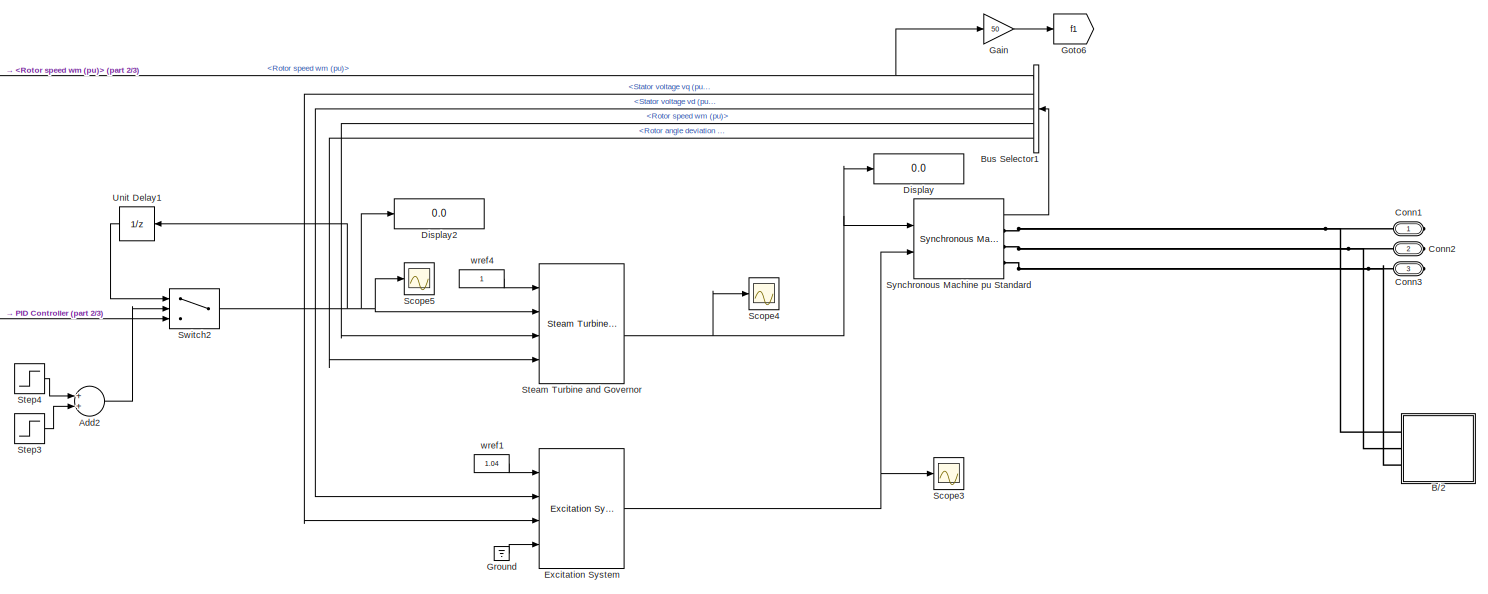
[diagram: Gen 1 - part 1/3, full width, top band]
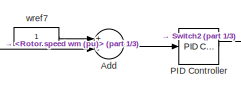
[diagram: Gen 1 - part 2/3, top left region]
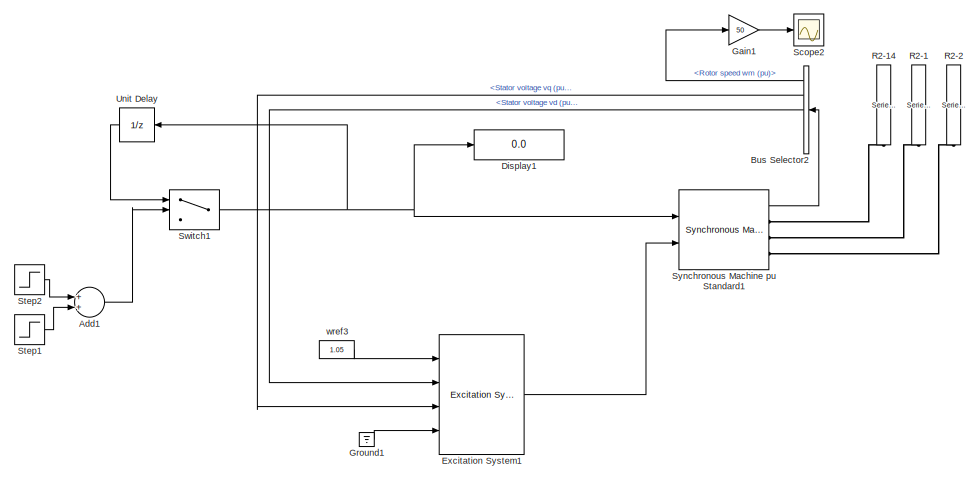
[diagram: Gen 1 - part 3/3, bottom center region]
BLOCK [SubSystem] Gen 1
  Ports = [0, 0, 0, 0, 0, 0, 3]
  RequestExecContextInheritance = off
  Variant = off
BLOCK [Sum] Gen 1/Add
  InputSameDT = off
  Inputs = +-
  OutDataTypeStr = Inherit: Inherit via internal rule
  Ports = [2, 1]
  SaturateOnIntegerOverflow = off
BLOCK [Sum] Gen 1/Add1
  Commented = on
  InputSameDT = off
  OutDataTypeStr = Inherit: Inherit via internal rule
  Ports = [2, 1]
  SaturateOnIntegerOverflow = off
BLOCK [Sum] Gen 1/Add2
  InputSameDT = off
  OutDataTypeStr = Inherit: Inherit via internal rule
  Ports = [2, 1]
  SaturateOnIntegerOverflow = off
BLOCK [SubSystem] Gen 1/B//2
  Ports = [0, 0, 0, 0, 0, 0, 3]
  RequestExecContextInheritance = off
  Variant = off
BLOCK [PMIOPort] Gen 1/B//2/Conn1
  Port = 1
  Side = Right
BLOCK [PMIOPort] Gen 1/B//2/Conn2
  Port = 2
  Side = Right
BLOCK [PMIOPort] Gen 1/B//2/Conn3
  Port = 3
  Side = Right
BLOCK [Reference] Gen 1/B//2/R2-1  REF=powerlib/Elements/Series RLC Branch
  Ports = [0, 0, 0, 0, 0, 1, 1]
  SourceBlock = powerlib/Elements/Series RLC Branch
  SourceType = Series RLC Branch
BLOCK [Reference] Gen 1/B//2/R2-2  REF=powerlib/Elements/Series RLC Branch
  Ports = [0, 0, 0, 0, 0, 1, 1]
  SourceBlock = powerlib/Elements/Series RLC Branch
  SourceType = Series RLC Branch
BLOCK [Reference] Gen 1/B//2/R2-32  REF=powerlib/Elements/Series RLC Branch
  Ports = [0, 0, 0, 0, 0, 1, 1]
  SourceBlock = powerlib/Elements/Series RLC Branch
  SourceType = Series RLC Branch
BLOCK [BusSelector] Gen 1/Bus Selector1
  OutputSignals = Mechanical.Rotor speed  wm  (pu),dq0 components.Stator voltage  vq (pu),dq0 components.Stator voltage  vd (pu),Mechanical.Rotor speed  wm  (pu),Mechanical.Rotor angle deviation  d_theta (rad)
  Ports = [1, 5]
BLOCK [BusSelector] Gen 1/Bus Selector2
  Commented = on
  OutputSignals = Mechanical.Rotor speed  wm  (pu),dq0 components.Stator voltage  vq (pu),dq0 components.Stator voltage  vd (pu),Mechanical.Rotor speed  wm  (pu),Mechanical.Rotor angle deviation  d_theta (rad)
  Ports = [1, 5]
BLOCK [PMIOPort] Gen 1/Conn1
  Port = 1
  Side = Right
BLOCK [PMIOPort] Gen 1/Conn2
  Port = 2
  Side = Right
BLOCK [PMIOPort] Gen 1/Conn3
  Port = 3
  Side = Right
BLOCK [Display] Gen 1/Display
  Decimation = 1
  Ports = [1]
BLOCK [Display] Gen 1/Display1
  Commented = on
  Decimation = 1
  Ports = [1]
BLOCK [Display] Gen 1/Display2
  Decimation = 1
  Ports = [1]
BLOCK [Reference] Gen 1/Excitation System  REF=sps_avr/Excitation System
  Ports = [4, 1]
  SourceBlock = sps_avr/Excitation System
  SourceType = Excitation System
BLOCK [Reference] Gen 1/Excitation System1  REF=sps_avr/Excitation System
  Commented = on
  Ports = [4, 1]
  SourceBlock = sps_avr/Excitation System
  SourceType = Excitation System
BLOCK [Gain] Gen 1/Gain
  Gain = 50
  OutDataTypeStr = Inherit: Inherit via internal rule
  ParamDataTypeStr = Inherit: Inherit via internal rule
  SaturateOnIntegerOverflow = off
BLOCK [Gain] Gen 1/Gain1
  Commented = on
  Gain = 50
  OutDataTypeStr = Inherit: Inherit via internal rule
  ParamDataTypeStr = Inherit: Inherit via internal rule
  SaturateOnIntegerOverflow = off
BLOCK [Goto] Gen 1/Goto6
  GotoTag = f1
  TagVisibility = global
BLOCK [Ground] Gen 1/Ground
BLOCK [Ground] Gen 1/Ground1
  Commented = on
BLOCK [Reference] Gen 1/PID Controller  REF=simulink/Continuous/PID Controller
  Ports = [1, 1]
  SourceBlock = simulink/Continuous/PID Controller
  SourceType = PID 1dof
BLOCK [Reference] Gen 1/R2-1  REF=powerlib/Elements/Series RLC Branch
  Commented = on
  Ports = [0, 0, 0, 0, 0, 1, 1]
  SourceBlock = powerlib/Elements/Series RLC Branch
  SourceType = Series RLC Branch
BLOCK [Reference] Gen 1/R2-14  REF=powerlib/Elements/Series RLC Branch
  Commented = on
  Ports = [0, 0, 0, 0, 0, 1, 1]
  SourceBlock = powerlib/Elements/Series RLC Branch
  SourceType = Series RLC Branch
BLOCK [Reference] Gen 1/R2-2  REF=powerlib/Elements/Series RLC Branch
  Commented = on
  Ports = [0, 0, 0, 0, 0, 1, 1]
  SourceBlock = powerlib/Elements/Series RLC Branch
  SourceType = Series RLC Branch
BLOCK [Scope] Gen 1/Scope2
  Commented = on
  Ports = [1]
  ScopeSpecificationString = Simulink.scopes.TimeScopeBlockCfg('CurrentConfiguration', extmgr.ConfigurationSet(extmgr.Configuration('Core','General UI',true),extmgr.Configuration('Core','Source UI',true),extmgr.Configuration('Sources','WiredSimulink',true,'DataLoggingVariableName','ScopeData1'),extmgr.Configuration('Visuals','Time Domain',true,'SerializedDisplays',{struct('MinYLimReal','49.80055','MaxYLimReal','50.03719','YLa...<+1447ch>
BLOCK [Scope] Gen 1/Scope3
  Ports = [1]
  ScopeSpecificationString = Simulink.scopes.TimeScopeBlockCfg('CurrentConfiguration', extmgr.ConfigurationSet(extmgr.Configuration('Core','General UI',true),extmgr.Configuration('Core','Source UI',true),extmgr.Configuration('Sources','WiredSimulink',true,'DataLoggingVariableName','ScopeData4'),extmgr.Configuration('Visuals','Time Domain',true,'SerializedDisplays',{struct('MinYLimReal','-1.97802','MaxYLimReal','6.35172','YLab...<+1448ch>
BLOCK [Scope] Gen 1/Scope4
  Ports = [1]
  ScopeSpecificationString = Simulink.scopes.TimeScopeBlockCfg('CurrentConfiguration', extmgr.ConfigurationSet(extmgr.Configuration('Core','General UI',true),extmgr.Configuration('Core','Source UI',true),extmgr.Configuration('Sources','WiredSimulink',true,'DataLoggingVariableName','ScopeData10'),extmgr.Configuration('Visuals','Time Domain',true,'SerializedDisplays',{struct('MinYLimReal','49.68596','MaxYLimReal','50.21482','YL...<+1441ch>
BLOCK [Scope] Gen 1/Scope5
  Ports = [1]
  ScopeSpecificationString = Simulink.scopes.TimeScopeBlockCfg('CurrentConfiguration', extmgr.ConfigurationSet(extmgr.Configuration('Core','General UI',true),extmgr.Configuration('Core','Source UI',true),extmgr.Configuration('Sources','WiredSimulink',true,'DataLoggingVariableName','ScopeData4'),extmgr.Configuration('Visuals','Time Domain',true,'SerializedDisplays',{struct('MinYLimReal','0.25798','MaxYLimReal','0.35292','YLabe...<+1435ch>
BLOCK [Reference] Gen 1/Steam Turbine and Governor  REF=powerlib/Machines/Steam Turbine
and Governor
  Ports = [4, 4]
  SourceBlock = powerlib/Machines/Steam Turbine\nand Governor
  SourceType = Steam Turbine and Governor
BLOCK [Step] Gen 1/Step1
  Commented = on
  SampleTime = Ts
  Time = loadconnection-1
BLOCK [Step] Gen 1/Step2
  After = 0
  Before = 1
  Commented = on
  SampleTime = Ts
  Time = startup
BLOCK [Step] Gen 1/Step3
  SampleTime = Ts
  Time = loadconnection-1
BLOCK [Step] Gen 1/Step4
  After = 0
  Before = 1
  SampleTime = Ts
  Time = startup-2
BLOCK [Switch] Gen 1/Switch1
  Commented = on
  Criteria = u2 > Threshold
  InputSameDT = off
  SaturateOnIntegerOverflow = off
  Threshold = 0.5
BLOCK [Switch] Gen 1/Switch2
  Criteria = u2 > Threshold
  InputSameDT = off
  SaturateOnIntegerOverflow = off
  Threshold = 0.5
BLOCK [Reference] Gen 1/Synchronous Machine pu Standard  REF=powerlib/Machines/Synchronous Machine
pu Standard
  Ports = [2, 1, 0, 0, 0, 0, 3]
  SourceBlock = powerlib/Machines/Synchronous Machine\npu Standard
  SourceType = Synchronous Machine
BLOCK [Reference] Gen 1/Synchronous Machine pu Standard1  REF=powerlib/Machines/Synchronous Machine
pu Standard
  Commented = on
  Ports = [2, 1, 0, 0, 0, 0, 3]
  SourceBlock = powerlib/Machines/Synchronous Machine\npu Standard
  SourceType = Synchronous Machine
BLOCK [UnitDelay] Gen 1/Unit Delay
  Commented = on
  InputProcessing = Elements as channels (sample based)
  SampleTime = Ts
BLOCK [UnitDelay] Gen 1/Unit Delay1
  InputProcessing = Elements as channels (sample based)
  SampleTime = Ts
BLOCK [Constant] Gen 1/wref1
  Value = 1.04
BLOCK [Constant] Gen 1/wref3
  Commented = on
  Value = 1.05
BLOCK [Constant] Gen 1/wref4
BLOCK [Constant] Gen 1/wref7
BLOCK [SubSystem] Gen 3
  Ports = [0, 0, 0, 0, 0, 0, 3]
  RequestExecContextInheritance = off
  Variant = off
BLOCK [SubSystem] Gen 3/B//2
  Ports = [0, 0, 0, 0, 0, 0, 3]
  RequestExecContextInheritance = off
  Variant = off
BLOCK [PMIOPort] Gen 3/B//2/Conn1
  Port = 1
  Side = Right
BLOCK [PMIOPort] Gen 3/B//2/Conn2
  Port = 2
  Side = Right
BLOCK [PMIOPort] Gen 3/B//2/Conn3
  Port = 3
  Side = Right
BLOCK [Reference] Gen 3/B//2/R2-1  REF=powerlib/Elements/Series RLC Branch
  Ports = [0, 0, 0, 0, 0, 1, 1]
  SourceBlock = powerlib/Elements/Series RLC Branch
  SourceType = Series RLC Branch
BLOCK [Reference] Gen 3/B//2/R2-2  REF=powerlib/Elements/Series RLC Branch
  Ports = [0, 0, 0, 0, 0, 1, 1]
  SourceBlock = powerlib/Elements/Series RLC Branch
  SourceType = Series RLC Branch
BLOCK [Reference] Gen 3/B//2/R2-32  REF=powerlib/Elements/Series RLC Branch
  Ports = [0, 0, 0, 0, 0, 1, 1]
  SourceBlock = powerlib/Elements/Series RLC Branch
  SourceType = Series RLC Branch
BLOCK [BusSelector] Gen 3/Bus Selector1
  OutputSignals = Mechanical.Rotor speed  wm  (pu),dq0 components.Stator voltage  vq (pu),dq0 components.Stator voltage  vd (pu),Mechanical.Rotor speed deviation  dw (pu),Output active power   Peo (pu)
  Ports = [1, 5]
BLOCK [PMIOPort] Gen 3/Conn1
  Port = 1
  Side = Right
BLOCK [PMIOPort] Gen 3/Conn2
  Port = 2
  Side = Right
BLOCK [PMIOPort] Gen 3/Conn3
  Port = 3
  Side = Right
BLOCK [Reference] Gen 3/Excitation System  REF=sps_avr/Excitation System
  Ports = [4, 1]
  SourceBlock = sps_avr/Excitation System
  SourceType = Excitation System
BLOCK [Gain] Gen 3/Gain
  Gain = 50
  OutDataTypeStr = Inherit: Inherit via internal rule
  ParamDataTypeStr = Inherit: Inherit via internal rule
  SaturateOnIntegerOverflow = off
BLOCK [Goto] Gen 3/Goto6
  GotoTag = f3
  TagVisibility = global
BLOCK [Ground] Gen 3/Ground
BLOCK [Reference] Gen 3/Hydraulic Turbine and Governor  REF=powerlib/Machines/Hydraulic Turbine
and Governor
  Ports = [5, 2]
  SourceBlock = powerlib/Machines/Hydraulic Turbine\nand Governor
  SourceType = Hydraulic Turbine and Governor
BLOCK [Scope] Gen 3/Losses1
  Ports = [1]
  ScopeSpecificationString = Simulink.scopes.TimeScopeBlockCfg('CurrentConfiguration', extmgr.ConfigurationSet(extmgr.Configuration('Core','General UI',true),extmgr.Configuration('Core','Source UI',true),extmgr.Configuration('Sources','WiredSimulink',true,'DataLoggingVariableName','ScopeData8'),extmgr.Configuration('Visuals','Time Domain',true,'SerializedDisplays',{struct('MinYLimReal','0.67026','MaxYLimReal','0.6976','YLabel...<+1457ch>
BLOCK [Scope] Gen 3/Losses2
  Ports = [1]
  ScopeSpecificationString = Simulink.scopes.TimeScopeBlockCfg('CurrentConfiguration', extmgr.ConfigurationSet(extmgr.Configuration('Core','General UI',true),extmgr.Configuration('Core','Source UI',true),extmgr.Configuration('Sources','WiredSimulink',true,'DataLoggingVariableName','ScopeData7'),extmgr.Configuration('Visuals','Time Domain',true,'SerializedDisplays',{struct('MinYLimReal','-19816.17049','MaxYLimReal','19717.6716...<+1511ch>
BLOCK [Reference] Gen 3/Synchronous Machine pu Standard  REF=powerlib/Machines/Synchronous Machine
pu Standard
  Ports = [2, 1, 0, 0, 0, 0, 3]
  SourceBlock = powerlib/Machines/Synchronous Machine\npu Standard
  SourceType = Synchronous Machine
BLOCK [Constant] Gen 3/wref1
  Value = 1.025
BLOCK [Constant] Gen 3/wref2
  Value = 85/128
BLOCK [Constant] Gen 3/wref3
BLOCK [SubSystem] Gen2
  Ports = [0, 0, 0, 0, 0, 0, 3]
  RequestExecContextInheritance = off
  Variant = off
BLOCK [SubSystem] Gen2/B//2
  Ports = [0, 0, 0, 0, 0, 0, 3]
  RequestExecContextInheritance = off
  Variant = off
BLOCK [PMIOPort] Gen2/B//2/Conn1
  Port = 1
  Side = Right
BLOCK [PMIOPort] Gen2/B//2/Conn2
  Port = 2
  Side = Right
BLOCK [PMIOPort] Gen2/B//2/Conn3
  Port = 3
  Side = Right
BLOCK [Reference] Gen2/B//2/R2-1  REF=powerlib/Elements/Series RLC Branch
  Ports = [0, 0, 0, 0, 0, 1, 1]
  SourceBlock = powerlib/Elements/Series RLC Branch
  SourceType = Series RLC Branch
BLOCK [Reference] Gen2/B//2/R2-2  REF=powerlib/Elements/Series RLC Branch
  Ports = [0, 0, 0, 0, 0, 1, 1]
  SourceBlock = powerlib/Elements/Series RLC Branch
  SourceType = Series RLC Branch
BLOCK [Reference] Gen2/B//2/R2-32  REF=powerlib/Elements/Series RLC Branch
  Ports = [0, 0, 0, 0, 0, 1, 1]
  SourceBlock = powerlib/Elements/Series RLC Branch
  SourceType = Series RLC Branch
BLOCK [BusSelector] Gen2/Bus Selector1
  OutputSignals = Mechanical.Rotor speed  wm  (pu),dq0 components.Stator voltage  vq (pu),dq0 components.Stator voltage  vd (pu),Mechanical.Rotor speed deviation  dw (pu),Output active power   Peo (pu)
  Ports = [1, 5]
BLOCK [PMIOPort] Gen2/Conn1
  Port = 1
  Side = Right
BLOCK [PMIOPort] Gen2/Conn2
  Port = 2
  Side = Right
BLOCK [PMIOPort] Gen2/Conn3
  Port = 3
  Side = Right
BLOCK [Reference] Gen2/Excitation System  REF=sps_avr/Excitation System
  Ports = [4, 1]
  SourceBlock = sps_avr/Excitation System
  SourceType = Excitation System
BLOCK [Gain] Gen2/Gain
  Gain = 50
  OutDataTypeStr = Inherit: Inherit via internal rule
  ParamDataTypeStr = Inherit: Inherit via internal rule
  SaturateOnIntegerOverflow = off
BLOCK [Goto] Gen2/Goto6
  GotoTag = f2
  TagVisibility = global
BLOCK [Ground] Gen2/Ground
BLOCK [Reference] Gen2/Hydraulic Turbine and Governor  REF=powerlib/Machines/Hydraulic Turbine
and Governor
  Ports = [5, 2]
  SourceBlock = powerlib/Machines/Hydraulic Turbine\nand Governor
  SourceType = Hydraulic Turbine and Governor
BLOCK [Scope] Gen2/Losses1
  Ports = [1]
  ScopeSpecificationString = Simulink.scopes.TimeScopeBlockCfg('CurrentConfiguration', extmgr.ConfigurationSet(extmgr.Configuration('Core','General UI',true),extmgr.Configuration('Core','Source UI',true),extmgr.Configuration('Sources','WiredSimulink',true,'DataLoggingVariableName','ScopeData6'),extmgr.Configuration('Visuals','Time Domain',true,'SerializedDisplays',{struct('MinYLimReal','0.856','MaxYLimReal','0.86504','YLabelR...<+1455ch>
BLOCK [Reference] Gen2/Synchronous Machine pu Standard  REF=powerlib/Machines/Synchronous Machine
pu Standard
  Ports = [2, 1, 0, 0, 0, 0, 3]
  SourceBlock = powerlib/Machines/Synchronous Machine\npu Standard
  SourceType = Synchronous Machine
BLOCK [Constant] Gen2/wref1
  Value = 1.025
BLOCK [Constant] Gen2/wref2
  Value = 163/192
BLOCK [Constant] Gen2/wref3
BLOCK [Scope] Generation 
  NumInputPorts = 4
  Ports = [4]
  ScopeSpecificationString = Simulink.scopes.TimeScopeBlockCfg('CurrentConfiguration', extmgr.ConfigurationSet(extmgr.Configuration('Core','General UI',true),extmgr.Configuration('Core','Source UI',true),extmgr.Configuration('Sources','WiredSimulink',true,'DataLoggingVariableName','ScopeData1'),extmgr.Configuration('Visuals','Time Domain',true,'SerializedDisplays',{struct('MinYLimReal','-25688011.78614','MaxYLimReal','2311921...<+1610ch>
BLOCK [Goto] Goto
  GotoTag = powergen2
BLOCK [Goto] Goto1
  GotoTag = powergen3
BLOCK [Goto] Goto2
  GotoTag = powergen1
BLOCK [Goto] Goto3
  GotoTag = powerload2
BLOCK [Goto] Goto4
  GotoTag = powerload1
BLOCK [Goto] Goto5
  GotoTag = powerload3
BLOCK [Goto] Goto6
  Commented = on
  GotoTag = powerwt
BLOCK [Goto] Goto7
  GotoTag = rocof
  TagVisibility = global
BLOCK [SubSystem] Line  5-4
  Ports = [0, 0, 0, 0, 0, 3, 3]
  RequestExecContextInheritance = off
  Variant = off
BLOCK [SubSystem] Line  5-4/B//1
  Ports = [0, 0, 0, 0, 0, 0, 3]
  RequestExecContextInheritance = off
  Variant = off
BLOCK [PMIOPort] Line  5-4/B//1/Conn1
  Port = 1
  Side = Right
BLOCK [PMIOPort] Line  5-4/B//1/Conn2
  Port = 2
  Side = Right
BLOCK [PMIOPort] Line  5-4/B//1/Conn3
  Port = 3
  Side = Right
BLOCK [Reference] Line  5-4/B//1/Ground  REF=powerlib/Elements/Ground
  Ports = [0, 0, 0, 0, 0, 1]
  SourceBlock = powerlib/Elements/Ground
  SourceType = Ground
BLOCK [Reference] Line  5-4/B//1/R2-1  REF=powerlib/Elements/Series RLC Branch
  Ports = [0, 0, 0, 0, 0, 1, 1]
  SourceBlock = powerlib/Elements/Series RLC Branch
  SourceType = Series RLC Branch
BLOCK [Reference] Line  5-4/B//1/R2-2  REF=powerlib/Elements/Series RLC Branch
  Ports = [0, 0, 0, 0, 0, 1, 1]
  SourceBlock = powerlib/Elements/Series RLC Branch
  SourceType = Series RLC Branch
BLOCK [Reference] Line  5-4/B//1/R2-3  REF=powerlib/Elements/Series RLC Branch
  Ports = [0, 0, 0, 0, 0, 1, 1]
  SourceBlock = powerlib/Elements/Series RLC Branch
  SourceType = Series RLC Branch
BLOCK [SubSystem] Line  5-4/B//2
  Ports = [0, 0, 0, 0, 0, 0, 3]
  RequestExecContextInheritance = off
  Variant = off
BLOCK [PMIOPort] Line  5-4/B//2/Conn1
  Port = 1
  Side = Right
BLOCK [PMIOPort] Line  5-4/B//2/Conn2
  Port = 2
  Side = Right
BLOCK [PMIOPort] Line  5-4/B//2/Conn3
  Port = 3
  Side = Right
BLOCK [Reference] Line  5-4/B//2/Ground  REF=powerlib/Elements/Ground
  Ports = [0, 0, 0, 0, 0, 1]
  SourceBlock = powerlib/Elements/Ground
  SourceType = Ground
BLOCK [Reference] Line  5-4/B//2/R2-1  REF=powerlib/Elements/Series RLC Branch
  Ports = [0, 0, 0, 0, 0, 1, 1]
  SourceBlock = powerlib/Elements/Series RLC Branch
  SourceType = Series RLC Branch
BLOCK [Reference] Line  5-4/B//2/R2-2  REF=powerlib/Elements/Series RLC Branch
  Ports = [0, 0, 0, 0, 0, 1, 1]
  SourceBlock = powerlib/Elements/Series RLC Branch
  SourceType = Series RLC Branch
BLOCK [Reference] Line  5-4/B//2/R2-3  REF=powerlib/Elements/Series RLC Branch
  Ports = [0, 0, 0, 0, 0, 1, 1]
  SourceBlock = powerlib/Elements/Series RLC Branch
  SourceType = Series RLC Branch
BLOCK [PMIOPort] Line  5-4/Conn1
  Port = 1
  Side = Right
BLOCK [PMIOPort] Line  5-4/Conn2
  Port = 2
  Side = Right
BLOCK [PMIOPort] Line  5-4/Conn3
  Port = 3
  Side = Right
BLOCK [PMIOPort] Line  5-4/Conn4
  Port = 4
  Side = Left
BLOCK [PMIOPort] Line  5-4/Conn5
  Port = 5
  Side = Left
BLOCK [PMIOPort] Line  5-4/Conn6
  Port = 6
  Side = Left
BLOCK [Reference] Line  5-4/R2-1  REF=powerlib/Elements/Series RLC Branch
  Ports = [0, 0, 0, 0, 0, 1, 1]
  SourceBlock = powerlib/Elements/Series RLC Branch
  SourceType = Series RLC Branch
BLOCK [Reference] Line  5-4/R2-2  REF=powerlib/Elements/Series RLC Branch
  Ports = [0, 0, 0, 0, 0, 1, 1]
  SourceBlock = powerlib/Elements/Series RLC Branch
  SourceType = Series RLC Branch
BLOCK [Reference] Line  5-4/R2-20  REF=powerlib/Elements/Series RLC Branch
  Ports = [0, 0, 0, 0, 0, 1, 1]
  SourceBlock = powerlib/Elements/Series RLC Branch
  SourceType = Series RLC Branch
BLOCK [SubSystem] Line 6-4
  Ports = [0, 0, 0, 0, 0, 3, 3]
  RequestExecContextInheritance = off
  Variant = off
BLOCK [SubSystem] Line 6-4/B//1
  Ports = [0, 0, 0, 0, 0, 0, 3]
  RequestExecContextInheritance = off
  Variant = off
BLOCK [PMIOPort] Line 6-4/B//1/Conn1
  Port = 1
  Side = Right
BLOCK [PMIOPort] Line 6-4/B//1/Conn2
  Port = 2
  Side = Right
BLOCK [PMIOPort] Line 6-4/B//1/Conn3
  Port = 3
  Side = Right
BLOCK [Reference] Line 6-4/B//1/Ground  REF=powerlib/Elements/Ground
  Ports = [0, 0, 0, 0, 0, 1]
  SourceBlock = powerlib/Elements/Ground
  SourceType = Ground
BLOCK [Reference] Line 6-4/B//1/R2-1  REF=powerlib/Elements/Series RLC Branch
  Ports = [0, 0, 0, 0, 0, 1, 1]
  SourceBlock = powerlib/Elements/Series RLC Branch
  SourceType = Series RLC Branch
BLOCK [Reference] Line 6-4/B//1/R2-2  REF=powerlib/Elements/Series RLC Branch
  Ports = [0, 0, 0, 0, 0, 1, 1]
  SourceBlock = powerlib/Elements/Series RLC Branch
  SourceType = Series RLC Branch
BLOCK [Reference] Line 6-4/B//1/R2-3  REF=powerlib/Elements/Series RLC Branch
  Ports = [0, 0, 0, 0, 0, 1, 1]
  SourceBlock = powerlib/Elements/Series RLC Branch
  SourceType = Series RLC Branch
BLOCK [SubSystem] Line 6-4/B//2
  Ports = [0, 0, 0, 0, 0, 0, 3]
  RequestExecContextInheritance = off
  Variant = off
BLOCK [PMIOPort] Line 6-4/B//2/Conn1
  Port = 1
  Side = Right
BLOCK [PMIOPort] Line 6-4/B//2/Conn2
  Port = 2
  Side = Right
BLOCK [PMIOPort] Line 6-4/B//2/Conn3
  Port = 3
  Side = Right
BLOCK [Reference] Line 6-4/B//2/Ground  REF=powerlib/Elements/Ground
  Ports = [0, 0, 0, 0, 0, 1]
  SourceBlock = powerlib/Elements/Ground
  SourceType = Ground
BLOCK [Reference] Line 6-4/B//2/R2-1  REF=powerlib/Elements/Series RLC Branch
  Ports = [0, 0, 0, 0, 0, 1, 1]
  SourceBlock = powerlib/Elements/Series RLC Branch
  SourceType = Series RLC Branch
BLOCK [Reference] Line 6-4/B//2/R2-2  REF=powerlib/Elements/Series RLC Branch
  Ports = [0, 0, 0, 0, 0, 1, 1]
  SourceBlock = powerlib/Elements/Series RLC Branch
  SourceType = Series RLC Branch
BLOCK [Reference] Line 6-4/B//2/R2-3  REF=powerlib/Elements/Series RLC Branch
  Ports = [0, 0, 0, 0, 0, 1, 1]
  SourceBlock = powerlib/Elements/Series RLC Branch
  SourceType = Series RLC Branch
BLOCK [PMIOPort] Line 6-4/Conn1
  Port = 1
  Side = Right
BLOCK [PMIOPort] Line 6-4/Conn2
  Port = 2
  Side = Right
BLOCK [PMIOPort] Line 6-4/Conn3
  Port = 3
  Side = Right
BLOCK [PMIOPort] Line 6-4/Conn4
  Port = 4
  Side = Left
BLOCK [PMIOPort] Line 6-4/Conn5
  Port = 5
  Side = Left
BLOCK [PMIOPort] Line 6-4/Conn6
  Port = 6
  Side = Left
BLOCK [Reference] Line 6-4/R2-1  REF=powerlib/Elements/Series RLC Branch
  Ports = [0, 0, 0, 0, 0, 1, 1]
  SourceBlock = powerlib/Elements/Series RLC Branch
  SourceType = Series RLC Branch
BLOCK [Reference] Line 6-4/R2-2  REF=powerlib/Elements/Series RLC Branch
  Ports = [0, 0, 0, 0, 0, 1, 1]
  SourceBlock = powerlib/Elements/Series RLC Branch
  SourceType = Series RLC Branch
BLOCK [Reference] Line 6-4/R2-22  REF=powerlib/Elements/Series RLC Branch
  Ports = [0, 0, 0, 0, 0, 1, 1]
  SourceBlock = powerlib/Elements/Series RLC Branch
  SourceType = Series RLC Branch
BLOCK [SubSystem] Line 7-1
  Ports = [0, 0, 0, 0, 0, 3, 3]
  RequestExecContextInheritance = off
  Variant = off
BLOCK [SubSystem] Line 7-1/B//1
  Ports = [0, 0, 0, 0, 0, 0, 3]
  RequestExecContextInheritance = off
  Variant = off
BLOCK [PMIOPort] Line 7-1/B//1/Conn1
  Port = 1
  Side = Right
BLOCK [PMIOPort] Line 7-1/B//1/Conn2
  Port = 2
  Side = Right
BLOCK [PMIOPort] Line 7-1/B//1/Conn3
  Port = 3
  Side = Right
BLOCK [Reference] Line 7-1/B//1/Ground  REF=powerlib/Elements/Ground
  Ports = [0, 0, 0, 0, 0, 1]
  SourceBlock = powerlib/Elements/Ground
  SourceType = Ground
BLOCK [Reference] Line 7-1/B//1/R2-1  REF=powerlib/Elements/Series RLC Branch
  Ports = [0, 0, 0, 0, 0, 1, 1]
  SourceBlock = powerlib/Elements/Series RLC Branch
  SourceType = Series RLC Branch
BLOCK [Reference] Line 7-1/B//1/R2-2  REF=powerlib/Elements/Series RLC Branch
  Ports = [0, 0, 0, 0, 0, 1, 1]
  SourceBlock = powerlib/Elements/Series RLC Branch
  SourceType = Series RLC Branch
BLOCK [Reference] Line 7-1/B//1/R2-3  REF=powerlib/Elements/Series RLC Branch
  Ports = [0, 0, 0, 0, 0, 1, 1]
  SourceBlock = powerlib/Elements/Series RLC Branch
  SourceType = Series RLC Branch
BLOCK [SubSystem] Line 7-1/B//2
  Ports = [0, 0, 0, 0, 0, 0, 3]
  RequestExecContextInheritance = off
  Variant = off
BLOCK [PMIOPort] Line 7-1/B//2/Conn1
  Port = 1
  Side = Right
BLOCK [PMIOPort] Line 7-1/B//2/Conn2
  Port = 2
  Side = Right
BLOCK [PMIOPort] Line 7-1/B//2/Conn3
  Port = 3
  Side = Right
BLOCK [Reference] Line 7-1/B//2/Ground  REF=powerlib/Elements/Ground
  Ports = [0, 0, 0, 0, 0, 1]
  SourceBlock = powerlib/Elements/Ground
  SourceType = Ground
BLOCK [Reference] Line 7-1/B//2/R2-1  REF=powerlib/Elements/Series RLC Branch
  Ports = [0, 0, 0, 0, 0, 1, 1]
  SourceBlock = powerlib/Elements/Series RLC Branch
  SourceType = Series RLC Branch
BLOCK [Reference] Line 7-1/B//2/R2-2  REF=powerlib/Elements/Series RLC Branch
  Ports = [0, 0, 0, 0, 0, 1, 1]
  SourceBlock = powerlib/Elements/Series RLC Branch
  SourceType = Series RLC Branch
BLOCK [Reference] Line 7-1/B//2/R2-3  REF=powerlib/Elements/Series RLC Branch
  Ports = [0, 0, 0, 0, 0, 1, 1]
  SourceBlock = powerlib/Elements/Series RLC Branch
  SourceType = Series RLC Branch
BLOCK [PMIOPort] Line 7-1/Conn1
  Port = 1
  Side = Right
BLOCK [PMIOPort] Line 7-1/Conn2
  Port = 2
  Side = Right
BLOCK [PMIOPort] Line 7-1/Conn3
  Port = 3
  Side = Right
BLOCK [PMIOPort] Line 7-1/Conn4
  Port = 4
  Side = Left
BLOCK [PMIOPort] Line 7-1/Conn5
  Port = 5
  Side = Left
BLOCK [PMIOPort] Line 7-1/Conn6
  Port = 6
  Side = Left
BLOCK [Reference] Line 7-1/R2-1  REF=powerlib/Elements/Series RLC Branch
  Ports = [0, 0, 0, 0, 0, 1, 1]
  SourceBlock = powerlib/Elements/Series RLC Branch
  SourceType = Series RLC Branch
BLOCK [Reference] Line 7-1/R2-2  REF=powerlib/Elements/Series RLC Branch
  Ports = [0, 0, 0, 0, 0, 1, 1]
  SourceBlock = powerlib/Elements/Series RLC Branch
  SourceType = Series RLC Branch
BLOCK [Reference] Line 7-1/R2-3  REF=powerlib/Elements/Series RLC Branch
  Ports = [0, 0, 0, 0, 0, 1, 1]
  SourceBlock = powerlib/Elements/Series RLC Branch
  SourceType = Series RLC Branch
BLOCK [SubSystem] Line 7-5
  Ports = [0, 0, 0, 0, 0, 3, 3]
  RequestExecContextInheritance = off
  Variant = off
BLOCK [SubSystem] Line 7-5/B//1
  Ports = [0, 0, 0, 0, 0, 0, 3]
  RequestExecContextInheritance = off
  Variant = off
BLOCK [PMIOPort] Line 7-5/B//1/Conn1
  Port = 1
  Side = Right
BLOCK [PMIOPort] Line 7-5/B//1/Conn2
  Port = 2
  Side = Right
BLOCK [PMIOPort] Line 7-5/B//1/Conn3
  Port = 3
  Side = Right
BLOCK [Reference] Line 7-5/B//1/Ground  REF=powerlib/Elements/Ground
  Ports = [0, 0, 0, 0, 0, 1]
  SourceBlock = powerlib/Elements/Ground
  SourceType = Ground
BLOCK [Reference] Line 7-5/B//1/R1  REF=powerlib/Elements/Series RLC Branch
  Ports = [0, 0, 0, 0, 0, 1, 1]
  SourceBlock = powerlib/Elements/Series RLC Branch
  SourceType = Series RLC Branch
BLOCK [Reference] Line 7-5/B//1/R2  REF=powerlib/Elements/Series RLC Branch
  Ports = [0, 0, 0, 0, 0, 1, 1]
  SourceBlock = powerlib/Elements/Series RLC Branch
  SourceType = Series RLC Branch
BLOCK [Reference] Line 7-5/B//1/R3  REF=powerlib/Elements/Series RLC Branch
  Ports = [0, 0, 0, 0, 0, 1, 1]
  SourceBlock = powerlib/Elements/Series RLC Branch
  SourceType = Series RLC Branch
BLOCK [SubSystem] Line 7-5/B//2
  Ports = [0, 0, 0, 0, 0, 0, 3]
  RequestExecContextInheritance = off
  Variant = off
BLOCK [PMIOPort] Line 7-5/B//2/Conn1
  Port = 1
  Side = Right
BLOCK [PMIOPort] Line 7-5/B//2/Conn2
  Port = 2
  Side = Right
BLOCK [PMIOPort] Line 7-5/B//2/Conn3
  Port = 3
  Side = Right
BLOCK [Reference] Line 7-5/B//2/Ground  REF=powerlib/Elements/Ground
  Ports = [0, 0, 0, 0, 0, 1]
  SourceBlock = powerlib/Elements/Ground
  SourceType = Ground
BLOCK [Reference] Line 7-5/B//2/R1  REF=powerlib/Elements/Series RLC Branch
  Ports = [0, 0, 0, 0, 0, 1, 1]
  SourceBlock = powerlib/Elements/Series RLC Branch
  SourceType = Series RLC Branch
BLOCK [Reference] Line 7-5/B//2/R2  REF=powerlib/Elements/Series RLC Branch
  Ports = [0, 0, 0, 0, 0, 1, 1]
  SourceBlock = powerlib/Elements/Series RLC Branch
  SourceType = Series RLC Branch
BLOCK [Reference] Line 7-5/B//2/R3  REF=powerlib/Elements/Series RLC Branch
  Ports = [0, 0, 0, 0, 0, 1, 1]
  SourceBlock = powerlib/Elements/Series RLC Branch
  SourceType = Series RLC Branch
BLOCK [PMIOPort] Line 7-5/Conn1
  Port = 1
  Side = Right
BLOCK [PMIOPort] Line 7-5/Conn2
  Port = 2
  Side = Right
BLOCK [PMIOPort] Line 7-5/Conn3
  Port = 3
  Side = Right
BLOCK [PMIOPort] Line 7-5/Conn4
  Port = 4
  Side = Left
BLOCK [PMIOPort] Line 7-5/Conn5
  Port = 5
  Side = Left
BLOCK [PMIOPort] Line 7-5/Conn6
  Port = 6
  Side = Left
BLOCK [Reference] Line 7-5/R2-1  REF=powerlib/Elements/Series RLC Branch
  Ports = [0, 0, 0, 0, 0, 1, 1]
  SourceBlock = powerlib/Elements/Series RLC Branch
  SourceType = Series RLC Branch
BLOCK [Reference] Line 7-5/R2-2  REF=powerlib/Elements/Series RLC Branch
  Ports = [0, 0, 0, 0, 0, 1, 1]
  SourceBlock = powerlib/Elements/Series RLC Branch
  SourceType = Series RLC Branch
BLOCK [Reference] Line 7-5/R2-20  REF=powerlib/Elements/Series RLC Branch
  Ports = [0, 0, 0, 0, 0, 1, 1]
  SourceBlock = powerlib/Elements/Series RLC Branch
  SourceType = Series RLC Branch
BLOCK [SubSystem] Line 7-8
  Ports = [0, 0, 0, 0, 0, 3, 3]
  RequestExecContextInheritance = off
  Variant = off
BLOCK [SubSystem] Line 7-8/B//1
  Ports = [0, 0, 0, 0, 0, 0, 3]
  RequestExecContextInheritance = off
  Variant = off
BLOCK [PMIOPort] Line 7-8/B//1/Conn1
  Port = 1
  Side = Right
BLOCK [PMIOPort] Line 7-8/B//1/Conn2
  Port = 2
  Side = Right
BLOCK [PMIOPort] Line 7-8/B//1/Conn3
  Port = 3
  Side = Right
BLOCK [Reference] Line 7-8/B//1/Ground  REF=powerlib/Elements/Ground
  Ports = [0, 0, 0, 0, 0, 1]
  SourceBlock = powerlib/Elements/Ground
  SourceType = Ground
BLOCK [Reference] Line 7-8/B//1/R2-1  REF=powerlib/Elements/Series RLC Branch
  Ports = [0, 0, 0, 0, 0, 1, 1]
  SourceBlock = powerlib/Elements/Series RLC Branch
  SourceType = Series RLC Branch
BLOCK [Reference] Line 7-8/B//1/R2-2  REF=powerlib/Elements/Series RLC Branch
  Ports = [0, 0, 0, 0, 0, 1, 1]
  SourceBlock = powerlib/Elements/Series RLC Branch
  SourceType = Series RLC Branch
BLOCK [Reference] Line 7-8/B//1/R2-3  REF=powerlib/Elements/Series RLC Branch
  Ports = [0, 0, 0, 0, 0, 1, 1]
  SourceBlock = powerlib/Elements/Series RLC Branch
  SourceType = Series RLC Branch
BLOCK [SubSystem] Line 7-8/B//2
  Ports = [0, 0, 0, 0, 0, 0, 3]
  RequestExecContextInheritance = off
  Variant = off
BLOCK [PMIOPort] Line 7-8/B//2/Conn1
  Port = 1
  Side = Right
BLOCK [PMIOPort] Line 7-8/B//2/Conn2
  Port = 2
  Side = Right
BLOCK [PMIOPort] Line 7-8/B//2/Conn3
  Port = 3
  Side = Right
BLOCK [Reference] Line 7-8/B//2/Ground  REF=powerlib/Elements/Ground
  Ports = [0, 0, 0, 0, 0, 1]
  SourceBlock = powerlib/Elements/Ground
  SourceType = Ground
BLOCK [Reference] Line 7-8/B//2/R2-1  REF=powerlib/Elements/Series RLC Branch
  Ports = [0, 0, 0, 0, 0, 1, 1]
  SourceBlock = powerlib/Elements/Series RLC Branch
  SourceType = Series RLC Branch
BLOCK [Reference] Line 7-8/B//2/R2-2  REF=powerlib/Elements/Series RLC Branch
  Ports = [0, 0, 0, 0, 0, 1, 1]
  SourceBlock = powerlib/Elements/Series RLC Branch
  SourceType = Series RLC Branch
BLOCK [Reference] Line 7-8/B//2/R2-3  REF=powerlib/Elements/Series RLC Branch
  Ports = [0, 0, 0, 0, 0, 1, 1]
  SourceBlock = powerlib/Elements/Series RLC Branch
  SourceType = Series RLC Branch
BLOCK [PMIOPort] Line 7-8/Conn1
  Port = 1
  Side = Right
BLOCK [PMIOPort] Line 7-8/Conn2
  Port = 2
  Side = Right
BLOCK [PMIOPort] Line 7-8/Conn3
  Port = 3
  Side = Right
BLOCK [PMIOPort] Line 7-8/Conn4
  Port = 4
  Side = Left
BLOCK [PMIOPort] Line 7-8/Conn5
  Port = 5
  Side = Left
BLOCK [PMIOPort] Line 7-8/Conn6
  Port = 6
  Side = Left
BLOCK [Reference] Line 7-8/R2-1  REF=powerlib/Elements/Series RLC Branch
  Ports = [0, 0, 0, 0, 0, 1, 1]
  SourceBlock = powerlib/Elements/Series RLC Branch
  SourceType = Series RLC Branch
BLOCK [Reference] Line 7-8/R2-2  REF=powerlib/Elements/Series RLC Branch
  Ports = [0, 0, 0, 0, 0, 1, 1]
  SourceBlock = powerlib/Elements/Series RLC Branch
  SourceType = Series RLC Branch
BLOCK [Reference] Line 7-8/R2-20  REF=powerlib/Elements/Series RLC Branch
  Ports = [0, 0, 0, 0, 0, 1, 1]
  SourceBlock = powerlib/Elements/Series RLC Branch
  SourceType = Series RLC Branch
BLOCK [SubSystem] Line 9-6
  Ports = [0, 0, 0, 0, 0, 3, 3]
  RequestExecContextInheritance = off
  Variant = off
BLOCK [SubSystem] Line 9-6/B//1
  Ports = [0, 0, 0, 0, 0, 0, 3]
  RequestExecContextInheritance = off
  Variant = off
BLOCK [PMIOPort] Line 9-6/B//1/Conn1
  Port = 1
  Side = Right
BLOCK [PMIOPort] Line 9-6/B//1/Conn2
  Port = 2
  Side = Right
BLOCK [PMIOPort] Line 9-6/B//1/Conn3
  Port = 3
  Side = Right
BLOCK [Reference] Line 9-6/B//1/Ground  REF=powerlib/Elements/Ground
  Ports = [0, 0, 0, 0, 0, 1]
  SourceBlock = powerlib/Elements/Ground
  SourceType = Ground
BLOCK [Reference] Line 9-6/B//1/R2-1  REF=powerlib/Elements/Series RLC Branch
  Ports = [0, 0, 0, 0, 0, 1, 1]
  SourceBlock = powerlib/Elements/Series RLC Branch
  SourceType = Series RLC Branch
BLOCK [Reference] Line 9-6/B//1/R2-2  REF=powerlib/Elements/Series RLC Branch
  Ports = [0, 0, 0, 0, 0, 1, 1]
  SourceBlock = powerlib/Elements/Series RLC Branch
  SourceType = Series RLC Branch
BLOCK [Reference] Line 9-6/B//1/R2-3  REF=powerlib/Elements/Series RLC Branch
  Ports = [0, 0, 0, 0, 0, 1, 1]
  SourceBlock = powerlib/Elements/Series RLC Branch
  SourceType = Series RLC Branch
BLOCK [SubSystem] Line 9-6/B//2
  Ports = [0, 0, 0, 0, 0, 0, 3]
  RequestExecContextInheritance = off
  Variant = off
BLOCK [PMIOPort] Line 9-6/B//2/Conn1
  Port = 1
  Side = Right
BLOCK [PMIOPort] Line 9-6/B//2/Conn2
  Port = 2
  Side = Right
BLOCK [PMIOPort] Line 9-6/B//2/Conn3
  Port = 3
  Side = Right
BLOCK [Reference] Line 9-6/B//2/Ground  REF=powerlib/Elements/Ground
  Ports = [0, 0, 0, 0, 0, 1]
  SourceBlock = powerlib/Elements/Ground
  SourceType = Ground
BLOCK [Reference] Line 9-6/B//2/R2-1  REF=powerlib/Elements/Series RLC Branch
  Ports = [0, 0, 0, 0, 0, 1, 1]
  SourceBlock = powerlib/Elements/Series RLC Branch
  SourceType = Series RLC Branch
BLOCK [Reference] Line 9-6/B//2/R2-2  REF=powerlib/Elements/Series RLC Branch
  Ports = [0, 0, 0, 0, 0, 1, 1]
  SourceBlock = powerlib/Elements/Series RLC Branch
  SourceType = Series RLC Branch
BLOCK [Reference] Line 9-6/B//2/R2-3  REF=powerlib/Elements/Series RLC Branch
  Ports = [0, 0, 0, 0, 0, 1, 1]
  SourceBlock = powerlib/Elements/Series RLC Branch
  SourceType = Series RLC Branch
BLOCK [PMIOPort] Line 9-6/Conn1
  Port = 1
  Side = Right
BLOCK [PMIOPort] Line 9-6/Conn2
  Port = 2
  Side = Right
BLOCK [PMIOPort] Line 9-6/Conn3
  Port = 3
  Side = Right
BLOCK [PMIOPort] Line 9-6/Conn4
  Port = 4
  Side = Left
BLOCK [PMIOPort] Line 9-6/Conn5
  Port = 5
  Side = Left
BLOCK [PMIOPort] Line 9-6/Conn6
  Port = 6
  Side = Left
BLOCK [Reference] Line 9-6/R2-1  REF=powerlib/Elements/Series RLC Branch
  Ports = [0, 0, 0, 0, 0, 1, 1]
  SourceBlock = powerlib/Elements/Series RLC Branch
  SourceType = Series RLC Branch
BLOCK [Reference] Line 9-6/R2-2  REF=powerlib/Elements/Series RLC Branch
  Ports = [0, 0, 0, 0, 0, 1, 1]
  SourceBlock = powerlib/Elements/Series RLC Branch
  SourceType = Series RLC Branch
BLOCK [Reference] Line 9-6/R2-20  REF=powerlib/Elements/Series RLC Branch
  Ports = [0, 0, 0, 0, 0, 1, 1]
  SourceBlock = powerlib/Elements/Series RLC Branch
  SourceType = Series RLC Branch
BLOCK [Reference] Load A  REF=powerlib/Elements/Three-Phase
Parallel RLC Load
  AttributesFormatString = \n
  Ports = [0, 0, 0, 0, 0, 3]
  SourceBlock = powerlib/Elements/Three-Phase\nParallel RLC Load
  SourceType = Three-Phase Parallel RLC Load
BLOCK [Reference] Load B  REF=powerlib/Elements/Three-Phase
Parallel RLC Load
  AttributesFormatString = \n
  Ports = [0, 0, 0, 0, 0, 3]
  SourceBlock = powerlib/Elements/Three-Phase\nParallel RLC Load
  SourceType = Three-Phase Parallel RLC Load
BLOCK [Reference] Load B2  REF=powerlib/Elements/Three-Phase
Parallel RLC Load
  AttributesFormatString = \n
  Ports = [0, 0, 0, 0, 0, 3]
  SourceBlock = powerlib/Elements/Three-Phase\nParallel RLC Load
  SourceType = Three-Phase Parallel RLC Load
BLOCK [Reference] Load C  REF=powerlib/Elements/Three-Phase
Parallel RLC Load
  AttributesFormatString = \n
  Ports = [0, 0, 0, 0, 0, 3]
  SourceBlock = powerlib/Elements/Three-Phase\nParallel RLC Load
  SourceType = Three-Phase Parallel RLC Load
BLOCK [Scope] Losses 
  Ports = [1]
  ScopeSpecificationString = Simulink.scopes.TimeScopeBlockCfg('CurrentConfiguration', extmgr.ConfigurationSet(extmgr.Configuration('Core','General UI',true),extmgr.Configuration('Core','Source UI',true),extmgr.Configuration('Sources','WiredSimulink',true,'DataLoggingVariableName','ScopeData3'),extmgr.Configuration('Visuals','Time Domain',true,'SerializedDisplays',{struct('MinYLimReal','-3282056.90782','MaxYLimReal','10997205...<+1484ch>
BLOCK [Scope] Losses3
  Ports = [1]
  ScopeSpecificationString = Simulink.scopes.TimeScopeBlockCfg('CurrentConfiguration', extmgr.ConfigurationSet(extmgr.Configuration('Core','General UI',true),extmgr.Configuration('Core','Source UI',true),extmgr.Configuration('Sources','WiredSimulink',true,'DataLoggingVariableName','ScopeData1'),extmgr.Configuration('Visuals','Time Domain',true,'SerializedDisplays',{struct('MinYLimReal','9679.48404','MaxYLimReal','17831.17125'...<+1505ch>
BLOCK [Scope] Losses4
  Ports = [1]
  ScopeSpecificationString = Simulink.scopes.TimeScopeBlockCfg('CurrentConfiguration', extmgr.ConfigurationSet(extmgr.Configuration('Core','General UI',true),extmgr.Configuration('Core','Source UI',true),extmgr.Configuration('Sources','WiredSimulink',true,'DataLoggingVariableName','ScopeData3'),extmgr.Configuration('Visuals','Time Domain',true,'SerializedDisplays',{struct('MinYLimReal','-256948.86745','MaxYLimReal','267791.87...<+1517ch>
BLOCK [Scope] Losses5
  Ports = [1]
  ScopeSpecificationString = Simulink.scopes.TimeScopeBlockCfg('CurrentConfiguration', extmgr.ConfigurationSet(extmgr.Configuration('Core','General UI',true),extmgr.Configuration('Core','Source UI',true),extmgr.Configuration('Sources','WiredSimulink',true,'DataLoggingVariableName','ScopeData5'),extmgr.Configuration('Visuals','Time Domain',true,'SerializedDisplays',{struct('MinYLimReal','190946.63939','MaxYLimReal','191197.308...<+1517ch>
BLOCK [Scope] Losses6
  Ports = [1]
  ScopeSpecificationString = Simulink.scopes.TimeScopeBlockCfg('CurrentConfiguration', extmgr.ConfigurationSet(extmgr.Configuration('Core','General UI',true),extmgr.Configuration('Core','Source UI',true),extmgr.Configuration('Sources','WiredSimulink',true,'DataLoggingVariableName','ScopeData6'),extmgr.Configuration('Visuals','Time Domain',true,'SerializedDisplays',{struct('MinYLimReal','-15663.12682','MaxYLimReal','17337.6908...<+1508ch>
BLOCK [Reference] Power (Positive-Sequence)  REF=powerlib_meascontrol/Measurements/Power
(Positive-Sequence)
  Ports = [2, 2]
  SourceBlock = powerlib_meascontrol/Measurements/Power\n(Positive-Sequence)
  SourceType = Power (Positive-Sequence)
BLOCK [Reference] Power (Positive-Sequence)1  REF=powerlib_meascontrol/Measurements/Power
(Positive-Sequence)
  Ports = [2, 2]
  SourceBlock = powerlib_meascontrol/Measurements/Power\n(Positive-Sequence)
  SourceType = Power (Positive-Sequence)
BLOCK [Reference] Power (Positive-Sequence)2  REF=powerlib_meascontrol/Measurements/Power
(Positive-Sequence)
  Ports = [2, 2]
  SourceBlock = powerlib_meascontrol/Measurements/Power\n(Positive-Sequence)
  SourceType = Power (Positive-Sequence)
BLOCK [Reference] Power (Positive-Sequence)3  REF=powerlib_meascontrol/Measurements/Power
(Positive-Sequence)
  Ports = [2, 2]
  SourceBlock = powerlib_meascontrol/Measurements/Power\n(Positive-Sequence)
  SourceType = Power (Positive-Sequence)
BLOCK [Reference] Power (Positive-Sequence)4  REF=powerlib_meascontrol/Measurements/Power
(Positive-Sequence)
  Ports = [2, 2]
  SourceBlock = powerlib_meascontrol/Measurements/Power\n(Positive-Sequence)
  SourceType = Power (Positive-Sequence)
BLOCK [Reference] Power (Positive-Sequence)5  REF=powerlib_meascontrol/Measurements/Power
(Positive-Sequence)
  Commented = on
  Ports = [2, 2]
  SourceBlock = powerlib_meascontrol/Measurements/Power\n(Positive-Sequence)
  SourceType = Power (Positive-Sequence)
BLOCK [Reference] Power (Positive-Sequence)6  REF=powerlib_meascontrol/Measurements/Power
(Positive-Sequence)
  Ports = [2, 2]
  SourceBlock = powerlib_meascontrol/Measurements/Power\n(Positive-Sequence)
  SourceType = Power (Positive-Sequence)
BLOCK [Reference] R2-2  REF=powerlib/Elements/Series RLC Branch
  Commented = on
  Ports = [0, 0, 0, 0, 0, 1, 1]
  SourceBlock = powerlib/Elements/Series RLC Branch
  SourceType = Series RLC Branch
BLOCK [Reference] R2-32  REF=powerlib/Elements/Series RLC Branch
  Commented = on
  Ports = [0, 0, 0, 0, 0, 1, 1]
  SourceBlock = powerlib/Elements/Series RLC Branch
  SourceType = Series RLC Branch
BLOCK [Reference] RMS  REF=powerlib_meascontrol/Measurements/RMS
  Ports = [1, 1]
  SourceBlock = powerlib_meascontrol/Measurements/RMS
  SourceType = RMS
BLOCK [Reference] RMS1  REF=powerlib_meascontrol/Measurements/RMS
  Ports = [1, 1]
  SourceBlock = powerlib_meascontrol/Measurements/RMS
  SourceType = RMS
BLOCK [Reference] RMS2  REF=powerlib_meascontrol/Measurements/RMS
  Ports = [1, 1]
  SourceBlock = powerlib_meascontrol/Measurements/RMS
  SourceType = RMS
BLOCK [Reference] RMS5  REF=powerlib_meascontrol/Measurements/RMS
  Ports = [1, 1]
  SourceBlock = powerlib_meascontrol/Measurements/RMS
  SourceType = RMS
BLOCK [Reference] RMS6  REF=powerlib_meascontrol/Measurements/RMS
  Ports = [1, 1]
  SourceBlock = powerlib_meascontrol/Measurements/RMS
  SourceType = RMS
BLOCK [Reference] RMS7  REF=powerlib_meascontrol/Measurements/RMS
  Ports = [1, 1]
  SourceBlock = powerlib_meascontrol/Measurements/RMS
  SourceType = RMS
BLOCK [Reference] Second-Order Filter1  REF=powerlib_meascontrol/Filters/Second-Order
Filter
  Ports = [1, 1]
  SourceBlock = powerlib_meascontrol/Filters/Second-Order\nFilter
  SourceType = Second-Order Filter
BLOCK [Reference] Second-Order Filter2  REF=powerlib_meascontrol/Filters/Second-Order
Filter
  Ports = [1, 1]
  SourceBlock = powerlib_meascontrol/Filters/Second-Order\nFilter
  SourceType = Second-Order Filter
BLOCK [Reference] Second-Order Filter3  REF=powerlib_meascontrol/Filters/Second-Order
Filter
  Ports = [1, 1]
  SourceBlock = powerlib_meascontrol/Filters/Second-Order\nFilter
  SourceType = Second-Order Filter
BLOCK [Reference] Three-Phase Breaker1  REF=powerlib/Elements/Three-Phase Breaker
  Ports = [0, 0, 0, 0, 0, 3, 3]
  SourceBlock = powerlib/Elements/Three-Phase Breaker
  SourceType = Three-Phase Breaker
BLOCK [Reference] Three-Phase V-I Measurement1  REF=powerlib/Measurements/Three-Phase
V-I Measurement
  Commented = on
  Ports = [0, 2, 0, 0, 0, 3, 3]
  SourceBlock = powerlib/Measurements/Three-Phase\nV-I Measurement
  SourceType = Three-Phase VI Measurement
BLOCK [ToWorkspace] To Workspace1
  FixptAsFi = on
  MaxDataPoints = inf
  Ports = [1]
  SampleTime = -1
  Save2DSignal = 3-D array (concatenate along third dimension)
  SaveFormat = Timeseries
  VariableName = freq1
BLOCK [ToWorkspace] To Workspace2
  FixptAsFi = on
  MaxDataPoints = inf
  Ports = [1]
  SampleTime = -1
  Save2DSignal = 3-D array (concatenate along third dimension)
  SaveFormat = Timeseries
  VariableName = freq2
BLOCK [ToWorkspace] To Workspace3
  FixptAsFi = on
  MaxDataPoints = inf
  Ports = [1]
  SampleTime = -1
  Save2DSignal = 3-D array (concatenate along third dimension)
  SaveFormat = Timeseries
  VariableName = rocof1
BLOCK [ToWorkspace] To Workspace4
  FixptAsFi = on
  MaxDataPoints = inf
  Ports = [1]
  SampleTime = -1
  Save2DSignal = 3-D array (concatenate along third dimension)
  SaveFormat = Timeseries
  VariableName = freq3
BLOCK [ToWorkspace] To Workspace5
  FixptAsFi = on
  MaxDataPoints = inf
  Ports = [1]
  SampleTime = -1
  Save2DSignal = 3-D array (concatenate along third dimension)
  SaveFormat = Timeseries
  VariableName = rocof2
BLOCK [ToWorkspace] To Workspace6
  FixptAsFi = on
  MaxDataPoints = inf
  Ports = [1]
  SampleTime = -1
  Save2DSignal = 3-D array (concatenate along third dimension)
  SaveFormat = Timeseries
  VariableName = rocof3
BLOCK [ToWorkspace] To Workspace7
  Commented = on
  Decimation = 3
  FixptAsFi = on
  MaxDataPoints = inf
  Ports = [1]
  SampleTime = -1
  Save2DSignal = 2-D array (concatenate along first dimension)
  SaveFormat = Structure With Time
  VariableName = power
BLOCK [Reference] Transformer 1-4   REF=powerlib/Elements/Three-Phase
Transformer
(Two Windings)
  Ports = [0, 0, 0, 0, 0, 3, 3]
  SourceBlock = powerlib/Elements/Three-Phase\nTransformer\n(Two Windings)
  SourceType = Three-Phase Transformer (Two Windings)
BLOCK [Reference] Transformer 1-4 1  REF=powerlib/Elements/Three-Phase
Transformer
(Two Windings)
  Commented = on
  Ports = [0, 0, 0, 0, 0, 3, 3]
  SourceBlock = powerlib/Elements/Three-Phase\nTransformer\n(Two Windings)
  SourceType = Three-Phase Transformer (Two Windings)
BLOCK [Reference] Transformer 2-7   REF=powerlib/Elements/Three-Phase
Transformer
(Two Windings)
  Ports = [0, 0, 0, 0, 0, 3, 3]
  SourceBlock = powerlib/Elements/Three-Phase\nTransformer\n(Two Windings)
  SourceType = Three-Phase Transformer (Two Windings)
BLOCK [Reference] Transformer 2-7 1  REF=powerlib/Elements/Three-Phase
Transformer
(Two Windings)
  Ports = [0, 0, 0, 0, 0, 3, 3]
  SourceBlock = powerlib/Elements/Three-Phase\nTransformer\n(Two Windings)
  SourceType = Three-Phase Transformer (Two Windings)
BLOCK [Display] Vgen3
  Decimation = 5
  Ports = [1]
BLOCK [Display] Vgen4
  Decimation = 5
  Ports = [1]
BLOCK [Display] Vgen5
  Decimation = 5
  Ports = [1]
BLOCK [Display] Vload1
  Decimation = 5
  Ports = [1]
BLOCK [Display] Vload2
  Decimation = 5
  Ports = [1]
BLOCK [Display] Vload3
  Decimation = 5
  Ports = [1]
BLOCK [Reference] powergui  REF=powerlib/powergui
  Ports = []
  Priority = 2
  SourceBlock = powerlib/powergui
  SourceType = PSB option menu block
ANNOTATION GE2.75 - 3: wt
ANNOTATION GE2.75 - 3: A
ANNOTATION GE2.75 - 3: Cp
ANNOTATION GE2.75 - 3: Current Tip Speed
ANNOTATION GE2.75 - 3: GSC
ANNOTATION GE2.75 - 3: Measurements GSC
ANNOTATION GE2.75 - 3: Measurements MSC
ANNOTATION GE2.75 - 3: Pt
ANNOTATION GE2.75 - 3: Subsystem3
ANNOTATION GE2.75 - 3: Vd*
ANNOTATION GE2.75 - 3: Vq*
ANNOTATION GE2.75 - 3: Wind Turbine2
ANNOTATION GE2.75 - 3: id*
ANNOTATION GE2.75 - 3: v3
LINE Add1:1 -> Add2:2
LINE Add2:1 -> Losses :1
LINE Add:1 -> Add2:1
LINE Bus 10:1 -> Power (Positive-Sequence)5:1
LINE Bus 10:2 -> Power (Positive-Sequence)5:2
NET Bus 1:1 -> Gain7:1, Losses3:1, Power (Positive-Sequence)3:1
LINE Bus 1:2 -> Power (Positive-Sequence)3:2
NET Bus 2:1 -> Gain6:1, Power (Positive-Sequence)1:1
LINE Bus 2:2 -> Power (Positive-Sequence)1:2
NET Bus 3:1 -> Gain5:1, Losses6:1, Power (Positive-Sequence)2:1
LINE Bus 3:2 -> Power (Positive-Sequence)2:2
NET Bus 5:1 -> Gain2:1, Losses4:1, Power (Positive-Sequence):1
LINE Bus 5:2 -> Power (Positive-Sequence):2
NET Bus 6:1 -> Gain:1, Losses5:1, Power (Positive-Sequence)4:1
LINE Bus 6:2 -> Power (Positive-Sequence)4:2
NET Bus 8:1 -> Gain1:1, Power (Positive-Sequence)6:1
LINE Bus 8:2 -> Power (Positive-Sequence)6:2
LINE Demux3:1 -> Controlled Current Source:1
LINE Demux3:2 -> Controlled Current Source1:1
LINE Demux3:3 -> Controlled Current Source2:1
LINE Derivative1:1 -> Second-Order Filter2:1
LINE Derivative2:1 -> Second-Order Filter3:1
LINE Derivative:1 -> Second-Order Filter1:1
NET From1:1 -> Add:2, Generation :2
NET From2:1 -> Add:1, Generation :1
NET From3:1 -> Add1:1, Concumption:1
NET From4:1 -> Add1:2, Concumption:2
NET From5:1 -> Add1:3, Concumption:3
NET From6:1 -> Concumption1:1, Derivative:1, To Workspace1:1
NET From7:1 -> Concumption1:2, Derivative1:1, To Workspace2:1
NET From8:1 -> Concumption1:3, Derivative2:1, To Workspace4:1
LINE From9:1 -> Generation :4
NET From:1 -> Add:3, Generation :3
LINE G ain:1 -> Demux3:1
LINE GE2.75 - 3/1//2:1 -> GE2.75 - 3/Product2:1
LINE GE2.75 - 3/3:1 -> GE2.75 - 3/Math Function:2
NET GE2.75 - 3/Add1:1 -> GE2.75 - 3/PID fast1:2, GE2.75 - 3/Subsystem2:enable, GE2.75 - 3/Switch2:2
LINE GE2.75 - 3/Add3:1 -> GE2.75 - 3/PID Controller2:1
LINE GE2.75 - 3/Add5:1 -> GE2.75 - 3/PID Controller1:1
NET GE2.75 - 3/Add7:1 -> GE2.75 - 3/PID fast1:1, GE2.75 - 3/PID fast:1
LINE GE2.75 - 3/Air Density:1 -> GE2.75 - 3/Product2:5
LINE GE2.75 - 3/Bus Selector5:1 -> GE2.75 - 3/Goto7:1
LINE GE2.75 - 3/Bus Selector5:2 -> GE2.75 - 3/Goto1:1
LINE GE2.75 - 3/Bus Selector5:3 -> GE2.75 - 3/Goto3:1
LINE GE2.75 - 3/Bus Selector5:4 -> GE2.75 - 3/Goto2:1
NET GE2.75 - 3/Bus Selector5:5 -> GE2.75 - 3/Goto8:1, GE2.75 - 3/Vdc* and Vdc2:1
LINE GE2.75 - 3/Bus Selector5:6 -> GE2.75 - 3/Goto9:1
LINE GE2.75 - 3/Bus Selector5:7 -> GE2.75 - 3/Goto10:1
NET GE2.75 - 3/Compare To Constant:1 -> GE2.75 - 3/Dc Current1:1, GE2.75 - 3/Goto5:1
LINE GE2.75 - 3/Constant1:1 -> GE2.75 - 3/Product:2
LINE GE2.75 - 3/Constant2:1 -> GE2.75 - 3/Product1:2
NET GE2.75 - 3/Constant:1 -> GE2.75 - 3/Sum:1, GE2.75 - 3/Vdc* and Vdc:1
LINE GE2.75 - 3/Demux1:1 -> GE2.75 - 3/Goto17:1
LINE GE2.75 - 3/Demux1:2 -> GE2.75 - 3/Goto18:1
LINE GE2.75 - 3/Demux1:3 -> GE2.75 - 3/Terminator2:1
LINE GE2.75 - 3/Demux2:1 -> GE2.75 - 3/Goto15:1
LINE GE2.75 - 3/Demux2:2 -> GE2.75 - 3/Goto16:1
LINE GE2.75 - 3/Demux2:3 -> GE2.75 - 3/Terminator1:1
LINE GE2.75 - 3/Divide1:1 -> GE2.75 - 3/MATLAB Function1:1
LINE GE2.75 - 3/Divide2:1 -> GE2.75 - 3/Product5:2
LINE GE2.75 - 3/Divide3:1 -> GE2.75 - 3/Ld2:1
LINE GE2.75 - 3/Divide:1 -> GE2.75 - 3/Gearbox:1
NET GE2.75 - 3/From10:1 -> GE2.75 - 3/Add3:2, GE2.75 - 3/isq-isq*:2
LINE GE2.75 - 3/From11:1 -> GE2.75 - 3/Product:1
NET GE2.75 - 3/From12:1 -> GE2.75 - 3/Sum:2, GE2.75 - 3/Vdc* and Vdc:2
LINE GE2.75 - 3/From13:1 -> GE2.75 - 3/Product1:1
LINE GE2.75 - 3/From14:1 -> GE2.75 - 3/Sum4:3
LINE GE2.75 - 3/From15:1 -> GE2.75 - 3/Sum1:2
NET GE2.75 - 3/From16:1 -> GE2.75 - 3/Sum3:2, GE2.75 - 3/id* and id :2
LINE GE2.75 - 3/From17:1 -> GE2.75 - 3/Sum2:2
NET GE2.75 - 3/From18:1 -> GE2.75 - 3/PWM Generator (2-Level)2:2, GE2.75 - 3/dq0 to abc1:2
LINE GE2.75 - 3/From19:1 -> GE2.75 - 3/Subsystem2:3
LINE GE2.75 - 3/From1:1 -> GE2.75 - 3/Subsystem2:1
LINE GE2.75 - 3/From20:1 -> GE2.75 - 3/abc to dq2:1
NET GE2.75 - 3/From21:1 -> GE2.75 - 3/PLL (3ph):1, GE2.75 - 3/abc to dq1:1
LINE GE2.75 - 3/From22:1 -> GE2.75 - 3/Subsystem2:4
LINE GE2.75 - 3/From23:1 -> GE2.75 - 3/Ld1:1
LINE GE2.75 - 3/From24:1 -> GE2.75 - 3/Divide2:1
LINE GE2.75 - 3/From25:1 -> GE2.75 - 3/Ld3:1
LINE GE2.75 - 3/From26:1 -> GE2.75 - 3/Subsystem2:5
LINE GE2.75 - 3/From2:1 -> GE2.75 - 3/Compare To Constant:1
LINE GE2.75 - 3/From3:1 -> GE2.75 - 3/Universal Bridge:1
LINE GE2.75 - 3/From4:1 -> GE2.75 - 3/Bus Selector5:1
NET GE2.75 - 3/From5:1 -> GE2.75 - 3/Add5:2, GE2.75 - 3/isd-isd*:2
LINE GE2.75 - 3/From6:1 -> GE2.75 - 3/Ld4:1
LINE GE2.75 - 3/From7:1 -> GE2.75 - 3/Pp2:1
LINE GE2.75 - 3/From8:1 -> GE2.75 - 3/Subsystem2:2
NET GE2.75 - 3/From9:1 -> GE2.75 - 3/Add7:1, GE2.75 - 3/wref-w1:1
LINE GE2.75 - 3/From:1 -> GE2.75 - 3/Universal Bridge1:1
LINE GE2.75 - 3/Gearbox/Divide:1 -> GE2.75 - 3/Gearbox/Tt':1
LINE GE2.75 - 3/Gearbox/Gear Ratio1:1 -> GE2.75 - 3/Gearbox/Divide:2
LINE GE2.75 - 3/Gearbox/Tt:1 -> GE2.75 - 3/Gearbox/Divide:1
NET GE2.75 - 3/Gearbox:1 -> GE2.75 - 3/Permanent Magnet Synchronous Machine:1, GE2.75 - 3/Reflected Torque:1, GE2.75 - 3/Vdc* and Vdc2:2
LINE GE2.75 - 3/IGBT:1 -> GE2.75 - 3/Terminator:1
NET GE2.75 - 3/Id*:1 -> GE2.75 - 3/Add5:1, GE2.75 - 3/isd-isd*:1
LINE GE2.75 - 3/Ld1:1 -> GE2.75 - 3/pitch angle controller:1
LINE GE2.75 - 3/Ld2:1 -> GE2.75 - 3/Saturatin2:1
LINE GE2.75 - 3/Ld3:1 -> GE2.75 - 3/Saturatin3:1
NET GE2.75 - 3/Ld4:1 -> GE2.75 - 3/Add7:2, GE2.75 - 3/Subsystem1:1, GE2.75 - 3/wref-w1:2
LINE GE2.75 - 3/MATLAB Function1:1 -> GE2.75 - 3/Product2:3
LINE GE2.75 - 3/Math Function1:1 -> GE2.75 - 3/Product3:1
LINE GE2.75 - 3/Math Function:1 -> GE2.75 - 3/Product2:2
LINE GE2.75 - 3/Mux1:1 -> GE2.75 - 3/dq0 to abc1:1
LINE GE2.75 - 3/Mux:1 -> GE2.75 - 3/Saturatin1:1
LINE GE2.75 - 3/PID Controller1:1 -> GE2.75 - 3/Unit Delay1:1
LINE GE2.75 - 3/PID Controller2:1 -> GE2.75 - 3/Unit Delay:1
LINE GE2.75 - 3/PID Controller3:1 -> GE2.75 - 3/Sum4:2
NET GE2.75 - 3/PID Controller4:1 -> GE2.75 - 3/Sum3:1, GE2.75 - 3/id* and id :1
LINE GE2.75 - 3/PID Controller:1 -> GE2.75 - 3/Sum1:1
NET GE2.75 - 3/PID fast1:1 -> GE2.75 - 3/Switch1:3, GE2.75 - 3/isq-isq*2:1
NET GE2.75 - 3/PID fast:1 -> GE2.75 - 3/Subsystem:1, GE2.75 - 3/Switch1:1
LINE GE2.75 - 3/PLL (3ph):1 -> GE2.75 - 3/Terminator3:1
NET GE2.75 - 3/PLL (3ph):2 -> GE2.75 - 3/Goto14:1, GE2.75 - 3/abc to dq1:2, GE2.75 - 3/abc to dq2:2
LINE GE2.75 - 3/PWM Generator (2-Level)2:1 -> GE2.75 - 3/Goto12:1
LINE GE2.75 - 3/PWM Generator (2-Level):1 -> GE2.75 - 3/Goto11:1
LINE GE2.75 - 3/Permanent Magnet Synchronous Machine:1 -> GE2.75 - 3/Goto:1
LINE GE2.75 - 3/Pp2:1 -> GE2.75 - 3/dq0 to abc:2
LINE GE2.75 - 3/Product1:1 -> GE2.75 - 3/Sum1:3
NET GE2.75 - 3/Product2:1 -> GE2.75 - 3/Divide:1, GE2.75 - 3/Ptur:1
LINE GE2.75 - 3/Product3:1 -> GE2.75 - 3/Product2:4
LINE GE2.75 - 3/Product4:1 -> GE2.75 - 3/Divide3:1
LINE GE2.75 - 3/Product5:1 -> GE2.75 - 3/Divide1:1
LINE GE2.75 - 3/Product:1 -> GE2.75 - 3/Sum4:1
LINE GE2.75 - 3/R1:1 -> GE2.75 - 3/Math Function1:1
LINE GE2.75 - 3/R2:1 -> GE2.75 - 3/Product5:1
LINE GE2.75 - 3/R3:1 -> GE2.75 - 3/Divide2:2
LINE GE2.75 - 3/R4:1 -> GE2.75 - 3/Product4:1
LINE GE2.75 - 3/R5:1 -> GE2.75 - 3/Divide1:2
LINE GE2.75 - 3/R6:1 -> GE2.75 - 3/Math Function:1
LINE GE2.75 - 3/R7:1 -> GE2.75 - 3/Product4:2
LINE GE2.75 - 3/R8:1 -> GE2.75 - 3/Divide3:2
LINE GE2.75 - 3/Saturatin1:1 -> GE2.75 - 3/dq0 to abc:1
LINE GE2.75 - 3/Saturatin2:1 -> GE2.75 - 3/Goto19:1
LINE GE2.75 - 3/Saturatin3:1 -> GE2.75 - 3/Divide:2
NET GE2.75 - 3/Step1:1 -> GE2.75 - 3/Subsystem:enable, GE2.75 - 3/Switch1:2
LINE GE2.75 - 3/Step2:1 -> GE2.75 - 3/Add1:1
LINE GE2.75 - 3/Step4:1 -> GE2.75 - 3/Subsystem1:enable
LINE GE2.75 - 3/Step5:1 -> GE2.75 - 3/Add1:2
LINE GE2.75 - 3/Subsystem/In1:1 -> GE2.75 - 3/Subsystem/Out1:1
LINE GE2.75 - 3/Subsystem1/In1:1 -> GE2.75 - 3/Subsystem1/Out1:1
LINE GE2.75 - 3/Subsystem1:1 -> GE2.75 - 3/Goto22:1
NET GE2.75 - 3/Subsystem2/Add1:1 -> GE2.75 - 3/Subsystem2/Product7:1, GE2.75 - 3/Subsystem2/wref-w2:1
NET GE2.75 - 3/Subsystem2/Divide4:1 -> GE2.75 - 3/Subsystem2/Out1:1, GE2.75 - 3/Subsystem2/wref-w1:1
LINE GE2.75 - 3/Subsystem2/In1:1 -> GE2.75 - 3/Subsystem2/Pp1:1
LINE GE2.75 - 3/Subsystem2/In2:1 -> GE2.75 - 3/Subsystem2/Pp3:1
LINE GE2.75 - 3/Subsystem2/In3:1 -> GE2.75 - 3/Subsystem2/Product7:2
LINE GE2.75 - 3/Subsystem2/In4:1 -> GE2.75 - 3/Subsystem2/Product7:3
LINE GE2.75 - 3/Subsystem2/In5:1 -> GE2.75 - 3/Subsystem2/Pp2:1
LINE GE2.75 - 3/Subsystem2/Pp1:1 -> GE2.75 - 3/Subsystem2/Product6:1
LINE GE2.75 - 3/Subsystem2/Pp2:1 -> GE2.75 - 3/Subsystem2/Divide4:2
LINE GE2.75 - 3/Subsystem2/Pp3:1 -> GE2.75 - 3/Subsystem2/Product6:2
LINE GE2.75 - 3/Subsystem2/Pp4:1 -> GE2.75 - 3/Subsystem2/Add1:1
LINE GE2.75 - 3/Subsystem2/Product6:1 -> GE2.75 - 3/Subsystem2/Pp4:1
LINE GE2.75 - 3/Subsystem2/Product7:1 -> GE2.75 - 3/Subsystem2/Divide4:1
LINE GE2.75 - 3/Subsystem2/Vo1:1 -> GE2.75 - 3/Subsystem2/Add1:2
NET GE2.75 - 3/Subsystem2:1 -> GE2.75 - 3/Switch2:1, GE2.75 - 3/wref-w3:1
LINE GE2.75 - 3/Subsystem:1 -> GE2.75 - 3/Goto4:1
LINE GE2.75 - 3/Sum1:1 -> GE2.75 - 3/Unit Delay4:1
LINE GE2.75 - 3/Sum2:1 -> GE2.75 - 3/PID Controller:1
LINE GE2.75 - 3/Sum3:1 -> GE2.75 - 3/PID Controller3:1
LINE GE2.75 - 3/Sum4:1 -> GE2.75 - 3/Unit Delay3:1
LINE GE2.75 - 3/Sum:1 -> GE2.75 - 3/PID Controller4:1
LINE GE2.75 - 3/Switch1:1 -> GE2.75 - 3/Switch2:3
NET GE2.75 - 3/Switch2:1 -> GE2.75 - 3/Add3:1, GE2.75 - 3/Unit Delay2:1, GE2.75 - 3/isq-isq*1:2, GE2.75 - 3/isq-isq*:1
LINE GE2.75 - 3/Three-Phase V-I Measurement:1 -> GE2.75 - 3/Goto20:1
LINE GE2.75 - 3/Three-Phase V-I Measurement:2 -> GE2.75 - 3/Goto21:1
LINE GE2.75 - 3/Unit Delay1:1 -> GE2.75 - 3/Mux:1
LINE GE2.75 - 3/Unit Delay2:1 -> GE2.75 - 3/PID fast1:3
LINE GE2.75 - 3/Unit Delay3:1 -> GE2.75 - 3/Mux1:1
LINE GE2.75 - 3/Unit Delay4:1 -> GE2.75 - 3/Mux1:2
LINE GE2.75 - 3/Unit Delay:1 -> GE2.75 - 3/Mux:2
LINE GE2.75 - 3/Vdc:1 -> GE2.75 - 3/Goto6:1
LINE GE2.75 - 3/Vo:1 -> GE2.75 - 3/Mux:3
LINE GE2.75 - 3/abc to dq1:1 -> GE2.75 - 3/Demux2:1
LINE GE2.75 - 3/abc to dq2:1 -> GE2.75 - 3/Demux1:1
LINE GE2.75 - 3/dq0 to abc1:1 -> GE2.75 - 3/PWM Generator (2-Level)2:1
LINE GE2.75 - 3/dq0 to abc:1 -> GE2.75 - 3/PWM Generator (2-Level):1
LINE GE2.75 - 3/g:1 -> GE2.75 - 3/IGBT:1
LINE GE2.75 - 3/iq*:1 -> GE2.75 - 3/Sum2:1
LINE GE2.75 - 3/pitch angle controller/Constant1:1 -> GE2.75 - 3/pitch angle controller/pitch angle controller:2
LINE GE2.75 - 3/pitch angle controller/pitch angle controller/0-pitch_max :1 -> GE2.75 - 3/pitch angle controller/pitch angle controller/t=Pitch_time_constant1:1
LINE GE2.75 - 3/pitch angle controller/pitch angle controller/Discrete PID Controller:1 -> GE2.75 - 3/pitch angle controller/pitch angle controller/Rate Limiter:1
LINE GE2.75 - 3/pitch angle controller/pitch angle controller/Rate Limiter:1 -> GE2.75 - 3/pitch angle controller/pitch angle controller/0-pitch_max :1
LINE GE2.75 - 3/pitch angle controller/pitch angle controller/Ref:1 -> GE2.75 - 3/pitch angle controller/pitch angle controller/Sum3:2
LINE GE2.75 - 3/pitch angle controller/pitch angle controller/Sum3:1 -> GE2.75 - 3/pitch angle controller/pitch angle controller/Discrete PID Controller:1
LINE GE2.75 - 3/pitch angle controller/pitch angle controller/t=Pitch_time_constant1:1 -> GE2.75 - 3/pitch angle controller/pitch angle controller/pitch:1
LINE GE2.75 - 3/pitch angle controller/pitch angle controller/wg:1 -> GE2.75 - 3/pitch angle controller/pitch angle controller/Sum3:1
LINE GE2.75 - 3/pitch angle controller/pitch angle controller:1 -> GE2.75 - 3/pitch angle controller/Beta:1
LINE GE2.75 - 3/pitch angle controller/wr:1 -> GE2.75 - 3/pitch angle controller/pitch angle controller:1
LINE GE2.75 - 3/pitch angle controller:1 -> GE2.75 - 3/MATLAB Function1:2
LINE GE2.75 - 3/sqr1:1 -> GE2.75 - 3/Product3:2
LINE GE2.75 - 3/sqr:1 -> GE2.75 - 3/Math Function1:2
LINE GE2.75 - 3/v0:1 -> GE2.75 - 3/Mux1:3
LINE Gain1:1 -> RMS1:1
LINE Gain2:1 -> RMS2:1
LINE Gain5:1 -> RMS5:1
LINE Gain6:1 -> RMS6:1
LINE Gain7:1 -> RMS7:1
LINE Gain:1 -> RMS:1
LINE Gen 1/Add1:1 -> Gen 1/Switch1:2
LINE Gen 1/Add2:1 -> Gen 1/Switch2:2
LINE Gen 1/Add:1 -> Gen 1/PID Controller:1
NET Gen 1/Bus Selector1:1 -> Gen 1/Add:2, Gen 1/Gain:1
LINE Gen 1/Bus Selector1:2 -> Gen 1/Excitation System:3
LINE Gen 1/Bus Selector1:3 -> Gen 1/Excitation System:2
LINE Gen 1/Bus Selector1:4 -> Gen 1/Steam Turbine and Governor:3
LINE Gen 1/Bus Selector1:5 -> Gen 1/Steam Turbine and Governor:4
LINE Gen 1/Bus Selector2:1 -> Gen 1/Gain1:1
LINE Gen 1/Bus Selector2:2 -> Gen 1/Excitation System1:3
LINE Gen 1/Bus Selector2:3 -> Gen 1/Excitation System1:2
LINE Gen 1/Excitation System1:1 -> Gen 1/Synchronous Machine pu Standard1:2
NET Gen 1/Excitation System:1 -> Gen 1/Scope3:1, Gen 1/Synchronous Machine pu Standard:2
LINE Gen 1/Gain1:1 -> Gen 1/Scope2:1
LINE Gen 1/Gain:1 -> Gen 1/Goto6:1
LINE Gen 1/Ground1:1 -> Gen 1/Excitation System1:4
LINE Gen 1/Ground:1 -> Gen 1/Excitation System:4
LINE Gen 1/PID Controller:1 -> Gen 1/Switch2:3
NET Gen 1/Steam Turbine and Governor:3 -> Gen 1/Display:1, Gen 1/Scope4:1, Gen 1/Synchronous Machine pu Standard:1
LINE Gen 1/Step1:1 -> Gen 1/Add1:2
LINE Gen 1/Step2:1 -> Gen 1/Add1:1
LINE Gen 1/Step3:1 -> Gen 1/Add2:2
LINE Gen 1/Step4:1 -> Gen 1/Add2:1
NET Gen 1/Switch1:1 -> Gen 1/Display1:1, Gen 1/Synchronous Machine pu Standard1:1, Gen 1/Unit Delay:1
NET Gen 1/Switch2:1 -> Gen 1/Display2:1, Gen 1/Scope5:1, Gen 1/Steam Turbine and Governor:2, Gen 1/Unit Delay1:1
LINE Gen 1/Synchronous Machine pu Standard1:1 -> Gen 1/Bus Selector2:1
LINE Gen 1/Synchronous Machine pu Standard:1 -> Gen 1/Bus Selector1:1
LINE Gen 1/Unit Delay1:1 -> Gen 1/Switch2:1
LINE Gen 1/Unit Delay:1 -> Gen 1/Switch1:1
LINE Gen 1/wref1:1 -> Gen 1/Excitation System:1
LINE Gen 1/wref3:1 -> Gen 1/Excitation System1:1
LINE Gen 1/wref4:1 -> Gen 1/Steam Turbine and Governor:1
LINE Gen 1/wref7:1 -> Gen 1/Add:1
NET Gen 3/Bus Selector1:1 -> Gen 3/Gain:1, Gen 3/Hydraulic Turbine and Governor:3
LINE Gen 3/Bus Selector1:2 -> Gen 3/Excitation System:3
LINE Gen 3/Bus Selector1:3 -> Gen 3/Excitation System:2
LINE Gen 3/Bus Selector1:4 -> Gen 3/Hydraulic Turbine and Governor:5
LINE Gen 3/Bus Selector1:5 -> Gen 3/Hydraulic Turbine and Governor:4
LINE Gen 3/Excitation System:1 -> Gen 3/Synchronous Machine pu Standard:2
LINE Gen 3/Gain:1 -> Gen 3/Goto6:1
LINE Gen 3/Ground:1 -> Gen 3/Excitation System:4
NET Gen 3/Hydraulic Turbine and Governor:2 -> Gen 3/Losses1:1, Gen 3/Losses2:1, Gen 3/Synchronous Machine pu Standard:1
LINE Gen 3/Synchronous Machine pu Standard:1 -> Gen 3/Bus Selector1:1
LINE Gen 3/wref1:1 -> Gen 3/Excitation System:1
LINE Gen 3/wref2:1 -> Gen 3/Hydraulic Turbine and Governor:2
LINE Gen 3/wref3:1 -> Gen 3/Hydraulic Turbine and Governor:1
NET Gen2/Bus Selector1:1 -> Gen2/Gain:1, Gen2/Hydraulic Turbine and Governor:3
LINE Gen2/Bus Selector1:2 -> Gen2/Excitation System:3
LINE Gen2/Bus Selector1:3 -> Gen2/Excitation System:2
LINE Gen2/Bus Selector1:4 -> Gen2/Hydraulic Turbine and Governor:5
LINE Gen2/Bus Selector1:5 -> Gen2/Hydraulic Turbine and Governor:4
LINE Gen2/Excitation System:1 -> Gen2/Synchronous Machine pu Standard:2
LINE Gen2/Gain:1 -> Gen2/Goto6:1
LINE Gen2/Ground:1 -> Gen2/Excitation System:4
NET Gen2/Hydraulic Turbine and Governor:2 -> Gen2/Losses1:1, Gen2/Synchronous Machine pu Standard:1
LINE Gen2/Synchronous Machine pu Standard:1 -> Gen2/Bus Selector1:1
LINE Gen2/wref1:1 -> Gen2/Excitation System:1
LINE Gen2/wref2:1 -> Gen2/Hydraulic Turbine and Governor:2
LINE Gen2/wref3:1 -> Gen2/Hydraulic Turbine and Governor:1
LINE Power (Positive-Sequence)1:1 -> Goto:1
LINE Power (Positive-Sequence)2:1 -> Goto1:1
LINE Power (Positive-Sequence)3:1 -> Goto2:1
LINE Power (Positive-Sequence)4:1 -> Goto3:1
NET Power (Positive-Sequence)5:1 -> Goto6:1, To Workspace7:1
LINE Power (Positive-Sequence)6:1 -> Goto5:1
LINE Power (Positive-Sequence):1 -> Goto4:1
LINE RMS1:1 -> Vload3:1
LINE RMS2:1 -> Vload1:1
LINE RMS5:1 -> Vgen3:1
LINE RMS6:1 -> Vgen4:1
LINE RMS7:1 -> Vgen5:1
LINE RMS:1 -> Vload2:1
NET Second-Order Filter1:1 -> Goto7:1, To Workspace3:1
LINE Second-Order Filter2:1 -> To Workspace5:1
LINE Second-Order Filter3:1 -> To Workspace6:1
LINE Three-Phase V-I Measurement1:2 -> G ain:1
PNET net1: Bus 10:LConn1 -- Controlled Current Source:RConn1 -- R2-2:RConn1 -- Three-Phase V-I Measurement1:RConn1
PNET net2: Bus 10:LConn2 -- Controlled Current Source1:RConn1 -- Three-Phase V-I Measurement1:RConn2
PNET net3: Bus 10:LConn3 -- Controlled Current Source2:RConn1 -- R2-32:LConn1 -- Three-Phase V-I Measurement1:RConn3
PLINE Bus 10:RConn1 -- Transformer 1-4 1:LConn1
PLINE Bus 10:RConn2 -- Transformer 1-4 1:LConn2
PLINE Bus 10:RConn3 -- Transformer 1-4 1:LConn3
PLINE Bus 1:LConn1 -- Gen 1:RConn1
PLINE Bus 1:LConn2 -- Gen 1:RConn2
PLINE Bus 1:LConn3 -- Gen 1:RConn3
PLINE Bus 1:RConn1 -- Transformer 1-4 :LConn1
PLINE Bus 1:RConn2 -- Transformer 1-4 :LConn2
PLINE Bus 1:RConn3 -- Transformer 1-4 :LConn3
PLINE Bus 2:LConn1 -- Gen2:RConn1
PLINE Bus 2:LConn2 -- Gen2:RConn2
PLINE Bus 2:LConn3 -- Gen2:RConn3
PLINE Bus 2:RConn1 -- Transformer 2-7 :LConn1
PLINE Bus 2:RConn2 -- Transformer 2-7 :LConn2
PLINE Bus 2:RConn3 -- Transformer 2-7 :LConn3
PLINE Bus 3:LConn1 -- Gen 3:RConn1
PLINE Bus 3:LConn2 -- Gen 3:RConn2
PLINE Bus 3:LConn3 -- Gen 3:RConn3
PLINE Bus 3:RConn1 -- Transformer 2-7 1:LConn1
PLINE Bus 3:RConn2 -- Transformer 2-7 1:LConn2
PLINE Bus 3:RConn3 -- Transformer 2-7 1:LConn3
PLINE Bus 4:LConn1 -- Transformer 1-4 :RConn1
PLINE Bus 4:LConn2 -- Transformer 1-4 :RConn2
PLINE Bus 4:LConn3 -- Transformer 1-4 :RConn3
PNET net4: Bus 4:RConn1 -- Line  5-4:RConn1 -- Line 6-4:RConn1
PNET net5: Bus 4:RConn2 -- Line  5-4:RConn2 -- Line 6-4:RConn2
PNET net6: Bus 4:RConn3 -- Line  5-4:RConn3 -- Line 6-4:RConn3
PLINE Bus 5:LConn1 -- Load A:LConn1
PLINE Bus 5:LConn2 -- Load A:LConn2
PLINE Bus 5:LConn3 -- Load A:LConn3
PNET net7: Bus 5:RConn1 -- Line  5-4:LConn1 -- Line 7-5:RConn1
PNET net8: Bus 5:RConn2 -- Line  5-4:LConn2 -- Line 7-5:RConn2
PNET net9: Bus 5:RConn3 -- Line  5-4:LConn3 -- Line 7-5:RConn3
PNET net10: Bus 6:LConn1 -- Load B:LConn1 -- Three-Phase Breaker1:LConn1
PNET net11: Bus 6:LConn2 -- Load B:LConn2 -- Three-Phase Breaker1:LConn2
PNET net12: Bus 6:LConn3 -- Load B:LConn3 -- Three-Phase Breaker1:LConn3
PNET net13: Bus 6:RConn1 -- Line 6-4:LConn1 -- Line 9-6:RConn1
PNET net14: Bus 6:RConn2 -- Line 6-4:LConn2 -- Line 9-6:RConn2
PNET net15: Bus 6:RConn3 -- Line 6-4:LConn3 -- Line 9-6:RConn3
PLINE Bus 7:LConn1 -- Transformer 2-7 :RConn1
PLINE Bus 7:LConn2 -- Transformer 2-7 :RConn2
PLINE Bus 7:LConn3 -- Transformer 2-7 :RConn3
PNET net16: Bus 7:RConn1 -- Line 7-5:LConn1 -- Line 7-8:LConn1
PNET net17: Bus 7:RConn2 -- Line 7-5:LConn2 -- Line 7-8:LConn2
PNET net18: Bus 7:RConn3 -- Line 7-5:LConn3 -- Line 7-8:LConn3
PLINE Bus 8:LConn1 -- Load C:LConn1
PLINE Bus 8:LConn2 -- Load C:LConn2
PLINE Bus 8:LConn3 -- Load C:LConn3
PNET net19: Bus 8:RConn1 -- Line 7-1:LConn1 -- Line 7-8:RConn1
PNET net20: Bus 8:RConn2 -- Line 7-1:LConn2 -- Line 7-8:RConn2
PNET net21: Bus 8:RConn3 -- Line 7-1:LConn3 -- Line 7-8:RConn3
PLINE Bus 9:LConn1 -- Transformer 2-7 1:RConn1
PLINE Bus 9:LConn2 -- Transformer 2-7 1:RConn2
PLINE Bus 9:LConn3 -- Transformer 2-7 1:RConn3
PNET net22: Bus 9:RConn1 -- Line 7-1:RConn1 -- Line 9-6:LConn1
PNET net23: Bus 9:RConn2 -- Line 7-1:RConn2 -- Line 9-6:LConn2
PNET net24: Bus 9:RConn3 -- Line 7-1:RConn3 -- Line 9-6:LConn3
PNET net25: Controlled Current Source1:LConn1 -- Controlled Current Source2:LConn1 -- Controlled Current Source:LConn1 -- R2-2:LConn1 -- R2-32:RConn1
PNET net26: GE2.75 - 3/Cdc:LConn1 -- GE2.75 - 3/IGBT:LConn1 -- GE2.75 - 3/Universal Bridge1:RConn1 -- GE2.75 - 3/Universal Bridge:RConn1 -- GE2.75 - 3/Vdc:LConn1
PNET net27: GE2.75 - 3/Cdc:RConn1 -- GE2.75 - 3/Series RLC Branch3:RConn1 -- GE2.75 - 3/Universal Bridge1:RConn2 -- GE2.75 - 3/Universal Bridge:RConn2 -- GE2.75 - 3/Vdc:LConn2
PLINE GE2.75 - 3/IGBT:RConn1 -- GE2.75 - 3/Series RLC Branch3:LConn1
PLINE GE2.75 - 3/Permanent Magnet Synchronous Machine:LConn1 -- GE2.75 - 3/Universal Bridge:LConn1
PLINE GE2.75 - 3/Permanent Magnet Synchronous Machine:LConn2 -- GE2.75 - 3/Universal Bridge:LConn2
PLINE GE2.75 - 3/Permanent Magnet Synchronous Machine:LConn3 -- GE2.75 - 3/Universal Bridge:LConn3
PNET net28: GE2.75 - 3/Phase A:RConn1 -- GE2.75 - 3/Series RLC Branch2:LConn1 -- GE2.75 - 3/Series RLC Branch5:LConn1 -- GE2.75 - 3/Three-Phase V-I Measurement:RConn1
PNET net29: GE2.75 - 3/Phase B:RConn1 -- GE2.75 - 3/Series RLC Branch1:LConn1 -- GE2.75 - 3/Series RLC Branch5:RConn1 -- GE2.75 - 3/Three-Phase V-I Measurement:RConn2
PNET net30: GE2.75 - 3/Phase C:RConn1 -- GE2.75 - 3/Series RLC Branch1:RConn1 -- GE2.75 - 3/Series RLC Branch2:RConn1 -- GE2.75 - 3/Three-Phase V-I Measurement:RConn3
PLINE GE2.75 - 3/Series RLC Branch14:LConn1 -- GE2.75 - 3/Universal Bridge1:LConn1
PLINE GE2.75 - 3/Series RLC Branch14:RConn1 -- GE2.75 - 3/Three-Phase V-I Measurement:LConn1
PLINE GE2.75 - 3/Series RLC Branch15:LConn1 -- GE2.75 - 3/Universal Bridge1:LConn2
PLINE GE2.75 - 3/Series RLC Branch15:RConn1 -- GE2.75 - 3/Three-Phase V-I Measurement:LConn2
PLINE GE2.75 - 3/Series RLC Branch16:LConn1 -- GE2.75 - 3/Universal Bridge1:LConn3
PLINE GE2.75 - 3/Series RLC Branch16:RConn1 -- GE2.75 - 3/Three-Phase V-I Measurement:LConn3
PLINE GE2.75 - 3:RConn1 -- Three-Phase V-I Measurement1:LConn1
PLINE GE2.75 - 3:RConn2 -- Three-Phase V-I Measurement1:LConn2
PLINE GE2.75 - 3:RConn3 -- Three-Phase V-I Measurement1:LConn3
PLINE Gen 1/B//2/Conn1:RConn1 -- Gen 1/B//2/R2-32:LConn1
PLINE Gen 1/B//2/Conn2:RConn1 -- Gen 1/B//2/R2-1:LConn1
PLINE Gen 1/B//2/Conn3:RConn1 -- Gen 1/B//2/R2-2:LConn1
PNET net31: Gen 1/B//2/R2-1:RConn1 -- Gen 1/B//2/R2-2:RConn1 -- Gen 1/B//2/R2-32:RConn1
PNET net32: Gen 1/B//2:RConn1 -- Gen 1/Conn1:RConn1 -- Gen 1/Synchronous Machine pu Standard:RConn1
PNET net33: Gen 1/B//2:RConn2 -- Gen 1/Conn2:RConn1 -- Gen 1/Synchronous Machine pu Standard:RConn2
PNET net34: Gen 1/B//2:RConn3 -- Gen 1/Conn3:RConn1 -- Gen 1/Synchronous Machine pu Standard:RConn3
PLINE Gen 1/R2-14:RConn1 -- Gen 1/Synchronous Machine pu Standard1:RConn1
PLINE Gen 1/R2-1:RConn1 -- Gen 1/Synchronous Machine pu Standard1:RConn2
PLINE Gen 1/R2-2:RConn1 -- Gen 1/Synchronous Machine pu Standard1:RConn3
PLINE Gen 3/B//2/Conn1:RConn1 -- Gen 3/B//2/R2-32:LConn1
PLINE Gen 3/B//2/Conn2:RConn1 -- Gen 3/B//2/R2-1:LConn1
PLINE Gen 3/B//2/Conn3:RConn1 -- Gen 3/B//2/R2-2:LConn1
PNET net35: Gen 3/B//2/R2-1:RConn1 -- Gen 3/B//2/R2-2:RConn1 -- Gen 3/B//2/R2-32:RConn1
PNET net36: Gen 3/B//2:RConn1 -- Gen 3/Conn1:RConn1 -- Gen 3/Synchronous Machine pu Standard:RConn1
PNET net37: Gen 3/B//2:RConn2 -- Gen 3/Conn2:RConn1 -- Gen 3/Synchronous Machine pu Standard:RConn2
PNET net38: Gen 3/B//2:RConn3 -- Gen 3/Conn3:RConn1 -- Gen 3/Synchronous Machine pu Standard:RConn3
PLINE Gen2/B//2/Conn1:RConn1 -- Gen2/B//2/R2-32:LConn1
PLINE Gen2/B//2/Conn2:RConn1 -- Gen2/B//2/R2-1:LConn1
PLINE Gen2/B//2/Conn3:RConn1 -- Gen2/B//2/R2-2:LConn1
PNET net39: Gen2/B//2/R2-1:RConn1 -- Gen2/B//2/R2-2:RConn1 -- Gen2/B//2/R2-32:RConn1
PNET net40: Gen2/B//2:RConn1 -- Gen2/Conn1:RConn1 -- Gen2/Synchronous Machine pu Standard:RConn1
PNET net41: Gen2/B//2:RConn2 -- Gen2/Conn2:RConn1 -- Gen2/Synchronous Machine pu Standard:RConn2
PNET net42: Gen2/B//2:RConn3 -- Gen2/Conn3:RConn1 -- Gen2/Synchronous Machine pu Standard:RConn3
PLINE Line  5-4/B//1/Conn1:RConn1 -- Line  5-4/B//1/R2-2:LConn1
PLINE Line  5-4/B//1/Conn2:RConn1 -- Line  5-4/B//1/R2-1:LConn1
PLINE Line  5-4/B//1/Conn3:RConn1 -- Line  5-4/B//1/R2-3:LConn1
PNET net43: Line  5-4/B//1/Ground:LConn1 -- Line  5-4/B//1/R2-1:RConn1 -- Line  5-4/B//1/R2-2:RConn1 -- Line  5-4/B//1/R2-3:RConn1
PNET net44: Line  5-4/B//1:RConn1 -- Line  5-4/Conn4:RConn1 -- Line  5-4/R2-2:RConn1
PNET net45: Line  5-4/B//1:RConn2 -- Line  5-4/Conn5:RConn1 -- Line  5-4/R2-1:RConn1
PNET net46: Line  5-4/B//1:RConn3 -- Line  5-4/Conn6:RConn1 -- Line  5-4/R2-20:RConn1
PLINE Line  5-4/B//2/Conn1:RConn1 -- Line  5-4/B//2/R2-2:LConn1
PLINE Line  5-4/B//2/Conn2:RConn1 -- Line  5-4/B//2/R2-1:LConn1
PLINE Line  5-4/B//2/Conn3:RConn1 -- Line  5-4/B//2/R2-3:LConn1
PNET net47: Line  5-4/B//2/Ground:LConn1 -- Line  5-4/B//2/R2-1:RConn1 -- Line  5-4/B//2/R2-2:RConn1 -- Line  5-4/B//2/R2-3:RConn1
PNET net48: Line  5-4/B//2:RConn1 -- Line  5-4/Conn1:RConn1 -- Line  5-4/R2-2:LConn1
PNET net49: Line  5-4/B//2:RConn2 -- Line  5-4/Conn2:RConn1 -- Line  5-4/R2-1:LConn1
PNET net50: Line  5-4/B//2:RConn3 -- Line  5-4/Conn3:RConn1 -- Line  5-4/R2-20:LConn1
PLINE Line 6-4/B//1/Conn1:RConn1 -- Line 6-4/B//1/R2-3:LConn1
PLINE Line 6-4/B//1/Conn2:RConn1 -- Line 6-4/B//1/R2-1:LConn1
PLINE Line 6-4/B//1/Conn3:RConn1 -- Line 6-4/B//1/R2-2:LConn1
PNET net51: Line 6-4/B//1/Ground:LConn1 -- Line 6-4/B//1/R2-1:RConn1 -- Line 6-4/B//1/R2-2:RConn1 -- Line 6-4/B//1/R2-3:RConn1
PNET net52: Line 6-4/B//1:RConn1 -- Line 6-4/Conn4:RConn1 -- Line 6-4/R2-22:RConn1
PNET net53: Line 6-4/B//1:RConn2 -- Line 6-4/Conn5:RConn1 -- Line 6-4/R2-1:RConn1
PNET net54: Line 6-4/B//1:RConn3 -- Line 6-4/Conn6:RConn1 -- Line 6-4/R2-2:RConn1
PLINE Line 6-4/B//2/Conn1:RConn1 -- Line 6-4/B//2/R2-3:LConn1
PLINE Line 6-4/B//2/Conn2:RConn1 -- Line 6-4/B//2/R2-1:LConn1
PLINE Line 6-4/B//2/Conn3:RConn1 -- Line 6-4/B//2/R2-2:LConn1
PNET net55: Line 6-4/B//2/Ground:LConn1 -- Line 6-4/B//2/R2-1:RConn1 -- Line 6-4/B//2/R2-2:RConn1 -- Line 6-4/B//2/R2-3:RConn1
PNET net56: Line 6-4/B//2:RConn1 -- Line 6-4/Conn1:RConn1 -- Line 6-4/R2-22:LConn1
PNET net57: Line 6-4/B//2:RConn2 -- Line 6-4/Conn2:RConn1 -- Line 6-4/R2-1:LConn1
PNET net58: Line 6-4/B//2:RConn3 -- Line 6-4/Conn3:RConn1 -- Line 6-4/R2-2:LConn1
PLINE Line 7-1/B//1/Conn1:RConn1 -- Line 7-1/B//1/R2-3:LConn1
PLINE Line 7-1/B//1/Conn2:RConn1 -- Line 7-1/B//1/R2-1:LConn1
PLINE Line 7-1/B//1/Conn3:RConn1 -- Line 7-1/B//1/R2-2:LConn1
PNET net59: Line 7-1/B//1/Ground:LConn1 -- Line 7-1/B//1/R2-1:RConn1 -- Line 7-1/B//1/R2-2:RConn1 -- Line 7-1/B//1/R2-3:RConn1
PNET net60: Line 7-1/B//1:RConn1 -- Line 7-1/Conn4:RConn1 -- Line 7-1/R2-2:RConn1
PNET net61: Line 7-1/B//1:RConn2 -- Line 7-1/Conn5:RConn1 -- Line 7-1/R2-1:RConn1
PNET net62: Line 7-1/B//1:RConn3 -- Line 7-1/Conn6:RConn1 -- Line 7-1/R2-3:RConn1
PLINE Line 7-1/B//2/Conn1:RConn1 -- Line 7-1/B//2/R2-3:LConn1
PLINE Line 7-1/B//2/Conn2:RConn1 -- Line 7-1/B//2/R2-1:LConn1
PLINE Line 7-1/B//2/Conn3:RConn1 -- Line 7-1/B//2/R2-2:LConn1
PNET net63: Line 7-1/B//2/Ground:LConn1 -- Line 7-1/B//2/R2-1:RConn1 -- Line 7-1/B//2/R2-2:RConn1 -- Line 7-1/B//2/R2-3:RConn1
PNET net64: Line 7-1/B//2:RConn1 -- Line 7-1/Conn1:RConn1 -- Line 7-1/R2-2:LConn1
PNET net65: Line 7-1/B//2:RConn2 -- Line 7-1/Conn2:RConn1 -- Line 7-1/R2-1:LConn1
PNET net66: Line 7-1/B//2:RConn3 -- Line 7-1/Conn3:RConn1 -- Line 7-1/R2-3:LConn1
PLINE Line 7-5/B//1/Conn1:RConn1 -- Line 7-5/B//1/R2:LConn1
PLINE Line 7-5/B//1/Conn2:RConn1 -- Line 7-5/B//1/R1:LConn1
PLINE Line 7-5/B//1/Conn3:RConn1 -- Line 7-5/B//1/R3:LConn1
PNET net67: Line 7-5/B//1/Ground:LConn1 -- Line 7-5/B//1/R1:RConn1 -- Line 7-5/B//1/R2:RConn1 -- Line 7-5/B//1/R3:RConn1
PNET net68: Line 7-5/B//1:RConn1 -- Line 7-5/Conn4:RConn1 -- Line 7-5/R2-2:RConn1
PNET net69: Line 7-5/B//1:RConn2 -- Line 7-5/Conn5:RConn1 -- Line 7-5/R2-1:RConn1
PNET net70: Line 7-5/B//1:RConn3 -- Line 7-5/Conn6:RConn1 -- Line 7-5/R2-20:RConn1
PLINE Line 7-5/B//2/Conn1:RConn1 -- Line 7-5/B//2/R2:LConn1
PLINE Line 7-5/B//2/Conn2:RConn1 -- Line 7-5/B//2/R1:LConn1
PLINE Line 7-5/B//2/Conn3:RConn1 -- Line 7-5/B//2/R3:LConn1
PNET net71: Line 7-5/B//2/Ground:LConn1 -- Line 7-5/B//2/R1:RConn1 -- Line 7-5/B//2/R2:RConn1 -- Line 7-5/B//2/R3:RConn1
PNET net72: Line 7-5/B//2:RConn1 -- Line 7-5/Conn1:RConn1 -- Line 7-5/R2-2:LConn1
PNET net73: Line 7-5/B//2:RConn2 -- Line 7-5/Conn2:RConn1 -- Line 7-5/R2-1:LConn1
PNET net74: Line 7-5/B//2:RConn3 -- Line 7-5/Conn3:RConn1 -- Line 7-5/R2-20:LConn1
PLINE Line 7-8/B//1/Conn1:RConn1 -- Line 7-8/B//1/R2-3:LConn1
PLINE Line 7-8/B//1/Conn2:RConn1 -- Line 7-8/B//1/R2-1:LConn1
PLINE Line 7-8/B//1/Conn3:RConn1 -- Line 7-8/B//1/R2-2:LConn1
PNET net75: Line 7-8/B//1/Ground:LConn1 -- Line 7-8/B//1/R2-1:RConn1 -- Line 7-8/B//1/R2-2:RConn1 -- Line 7-8/B//1/R2-3:RConn1
PNET net76: Line 7-8/B//1:RConn1 -- Line 7-8/Conn4:RConn1 -- Line 7-8/R2-2:RConn1
PNET net77: Line 7-8/B//1:RConn2 -- Line 7-8/Conn5:RConn1 -- Line 7-8/R2-1:RConn1
PNET net78: Line 7-8/B//1:RConn3 -- Line 7-8/Conn6:RConn1 -- Line 7-8/R2-20:RConn1
PLINE Line 7-8/B//2/Conn1:RConn1 -- Line 7-8/B//2/R2-3:LConn1
PLINE Line 7-8/B//2/Conn2:RConn1 -- Line 7-8/B//2/R2-1:LConn1
PLINE Line 7-8/B//2/Conn3:RConn1 -- Line 7-8/B//2/R2-2:LConn1
PNET net79: Line 7-8/B//2/Ground:LConn1 -- Line 7-8/B//2/R2-1:RConn1 -- Line 7-8/B//2/R2-2:RConn1 -- Line 7-8/B//2/R2-3:RConn1
PNET net80: Line 7-8/B//2:RConn1 -- Line 7-8/Conn1:RConn1 -- Line 7-8/R2-2:LConn1
PNET net81: Line 7-8/B//2:RConn2 -- Line 7-8/Conn2:RConn1 -- Line 7-8/R2-1:LConn1
PNET net82: Line 7-8/B//2:RConn3 -- Line 7-8/Conn3:RConn1 -- Line 7-8/R2-20:LConn1
PLINE Line 9-6/B//1/Conn1:RConn1 -- Line 9-6/B//1/R2-3:LConn1
PLINE Line 9-6/B//1/Conn2:RConn1 -- Line 9-6/B//1/R2-1:LConn1
PLINE Line 9-6/B//1/Conn3:RConn1 -- Line 9-6/B//1/R2-2:LConn1
PNET net83: Line 9-6/B//1/Ground:LConn1 -- Line 9-6/B//1/R2-1:RConn1 -- Line 9-6/B//1/R2-2:RConn1 -- Line 9-6/B//1/R2-3:RConn1
PNET net84: Line 9-6/B//1:RConn1 -- Line 9-6/Conn4:RConn1 -- Line 9-6/R2-2:RConn1
PNET net85: Line 9-6/B//1:RConn2 -- Line 9-6/Conn5:RConn1 -- Line 9-6/R2-1:RConn1
PNET net86: Line 9-6/B//1:RConn3 -- Line 9-6/Conn6:RConn1 -- Line 9-6/R2-20:RConn1
PLINE Line 9-6/B//2/Conn1:RConn1 -- Line 9-6/B//2/R2-3:LConn1
PLINE Line 9-6/B//2/Conn2:RConn1 -- Line 9-6/B//2/R2-1:LConn1
PLINE Line 9-6/B//2/Conn3:RConn1 -- Line 9-6/B//2/R2-2:LConn1
PNET net87: Line 9-6/B//2/Ground:LConn1 -- Line 9-6/B//2/R2-1:RConn1 -- Line 9-6/B//2/R2-2:RConn1 -- Line 9-6/B//2/R2-3:RConn1
PNET net88: Line 9-6/B//2:RConn1 -- Line 9-6/Conn1:RConn1 -- Line 9-6/R2-2:LConn1
PNET net89: Line 9-6/B//2:RConn2 -- Line 9-6/Conn2:RConn1 -- Line 9-6/R2-1:LConn1
PNET net90: Line 9-6/B//2:RConn3 -- Line 9-6/Conn3:RConn1 -- Line 9-6/R2-20:LConn1
PLINE Load B2:LConn1 -- Three-Phase Breaker1:RConn1
PLINE Load B2:LConn2 -- Three-Phase Breaker1:RConn2
PLINE Load B2:LConn3 -- Three-Phase Breaker1:RConn3
note: NET lines group one-source signal fan-out (src -> all destinations, sorted); 1:1 wires keep LINE; PNET lines group multi-terminal physical nets as a canonical sorted terminal list (undirected conserving connections); 2-terminal nets keep the pairwise PLINE form
CHART GE2.75 - 3/MATLAB Function1 states=1 transitions=1
  STATE_LABEL 'eML_blk_kernel()'
  STATE_LABEL 'SCRIPT:\nfunction Cp = fcn(u,B)\n\nc1 = 0.5176;\nc2 = 116;\nc3 = 0.4; \nc4 = 5;\nc5 = 21;\nc6 = 0.0068;\n\ni =u;\n\nli = 1/((1/(i+0.08*B))-(0.035/(B^3+1)));\n\nCp = c1*((c2/li-c3*B-c4)*exp(-c5/li))+c6*i;\n\nend\n'
